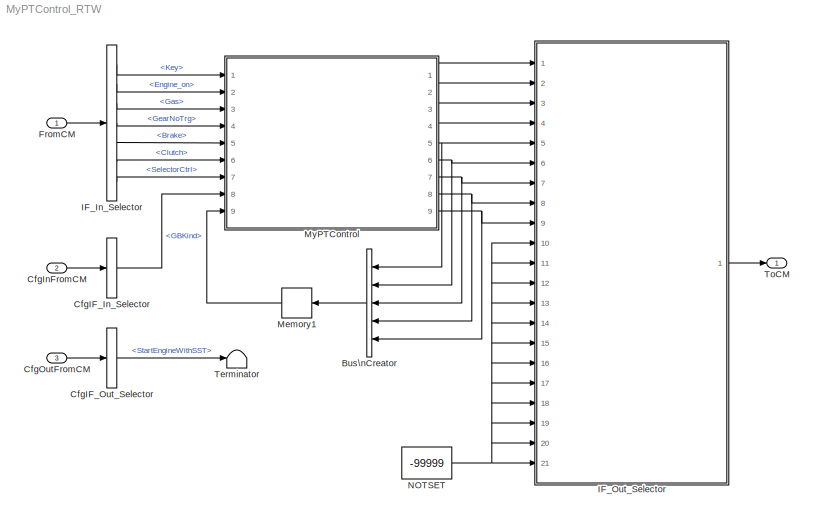
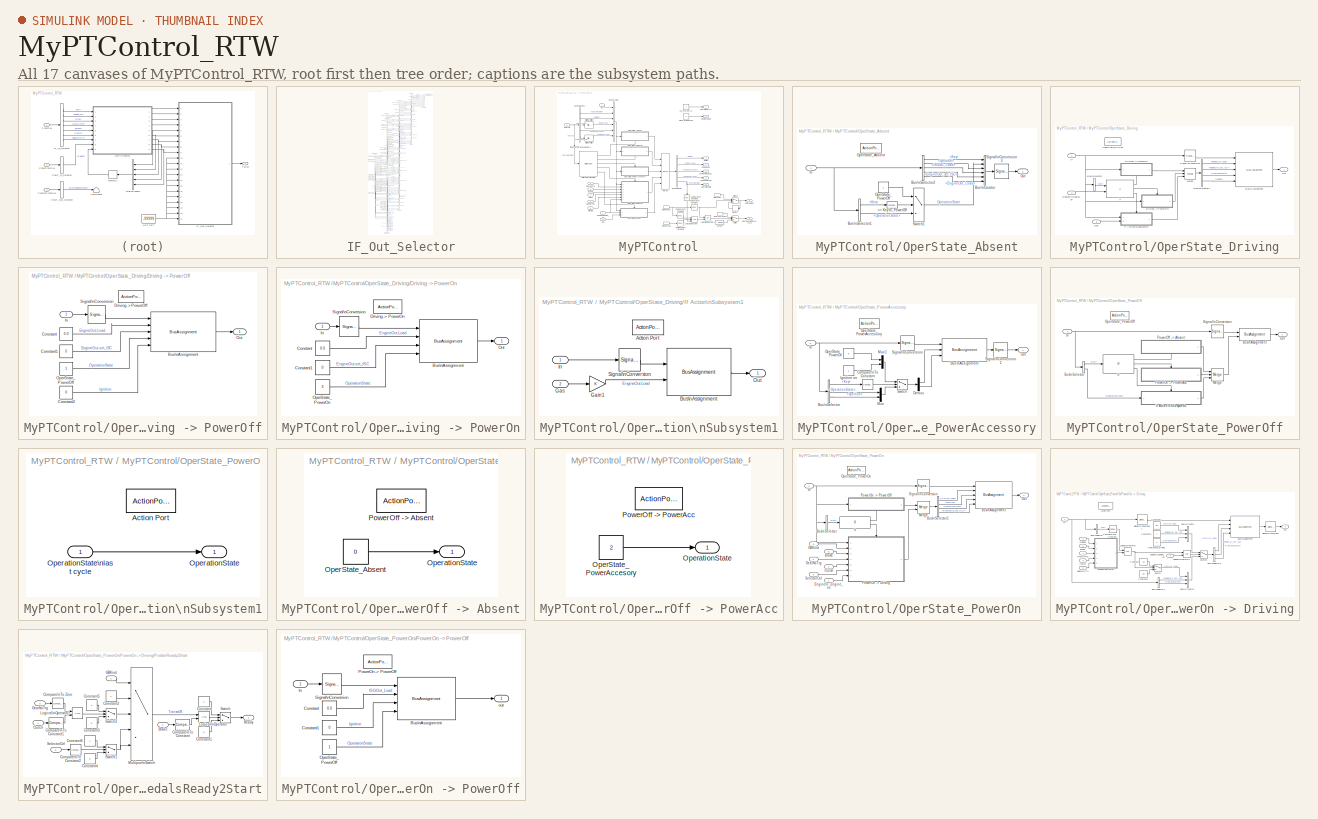
[diagram: thumbnail index - all 17 canvases of the model, root first then tree order]
MODEL MyPTControl_RTW
KIND model
CONFIG InitFcn = vehicle = 'Car'; if ~length(which('cmcmd')), cmenv; end\nMyPTControl_RTW_bus
CONFIG PreLoadFcn = vehicle = 'Car'; if ~length(which('cmcmd')), cmenv; end\nMyPTControl_RTW_bus
BLOCK [BusCreator] Bus\nCreator
  DisplayOption = bar
  InheritFromInputs = on
  Inputs = 5
  Ports = [5, 1]
  SID = 162
BLOCK [BusSelector] CfgIF_In_Selector
  OutputSignals = GearBox.GBKind
  Ports = [1, 1]
  SID = 163
BLOCK [BusSelector] CfgIF_Out_Selector
  OutputSignals = StartEngineWithSST
  Ports = [1, 1]
  SID = 164
BLOCK [Inport] CfgInFromCM
  IconDisplay = Port number
  OutDataTypeStr = Bus: cmPTControlCfgIn
  Port = 2
  SID = 8
BLOCK [Inport] CfgOutFromCM
  IconDisplay = Port number
  OutDataTypeStr = Bus: cmPTControlCfgOut
  Port = 3
  SID = 11
BLOCK [Inport] FromCM
  IconDisplay = Port number
  OutDataTypeStr = Bus: cmPTControlIn
  SID = 1
BLOCK [BusSelector] IF_In_Selector
  OutputSignals = Key,EngineIn.Engine_on,Gas,GearNoTrg,Brake,Clutch,SelectorCtrl
  Ports = [1, 7]
  SID = 165
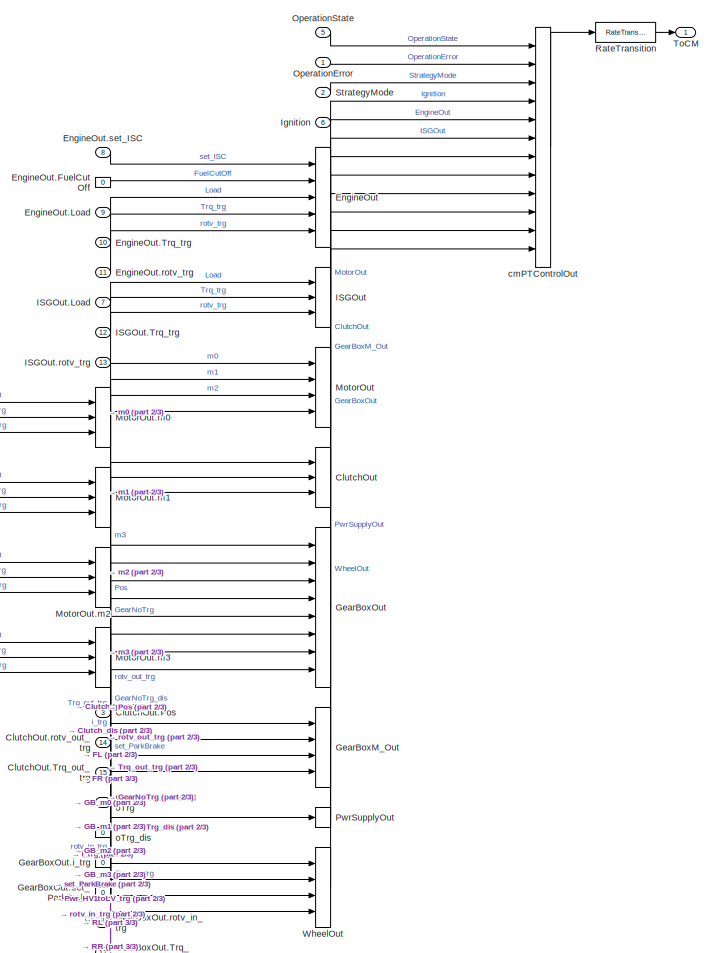
[diagram: IF_Out_Selector - part 1/3, top right region]
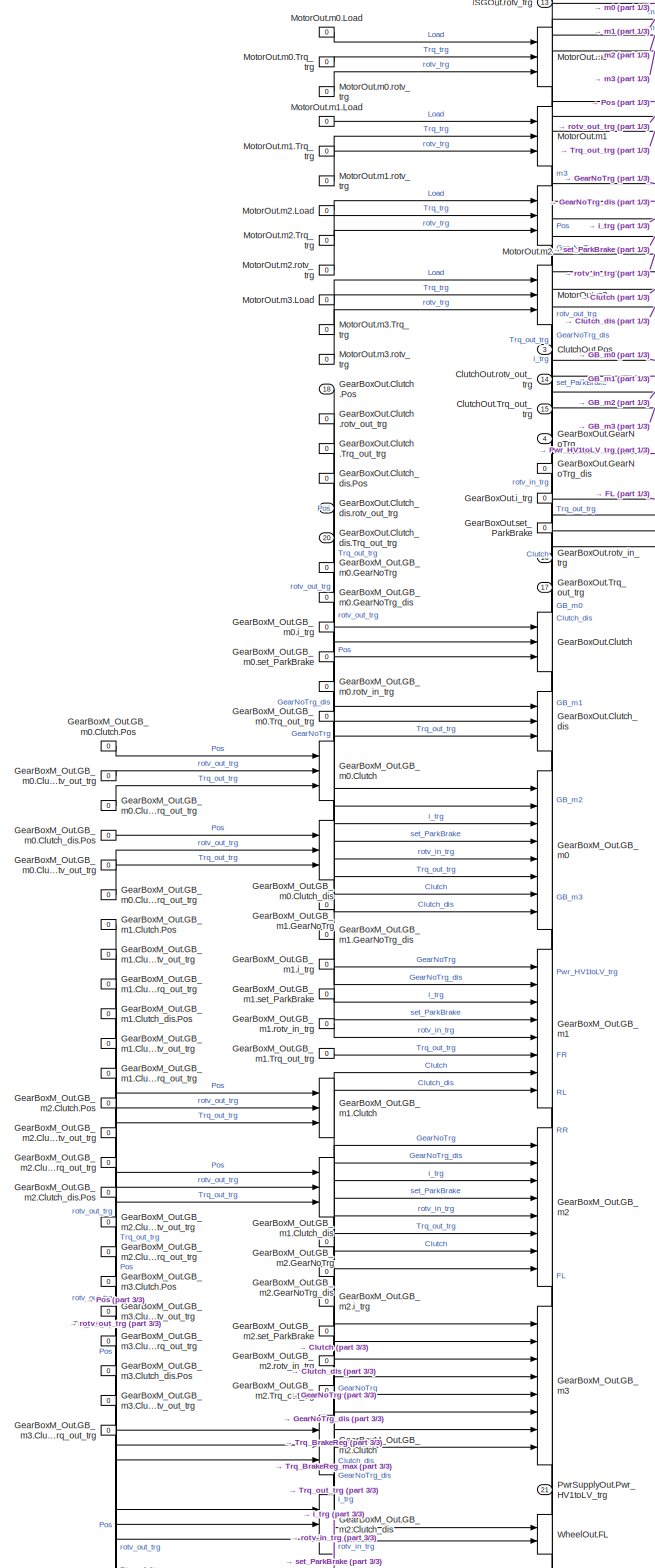
[diagram: IF_Out_Selector - part 2/3, middle left region]
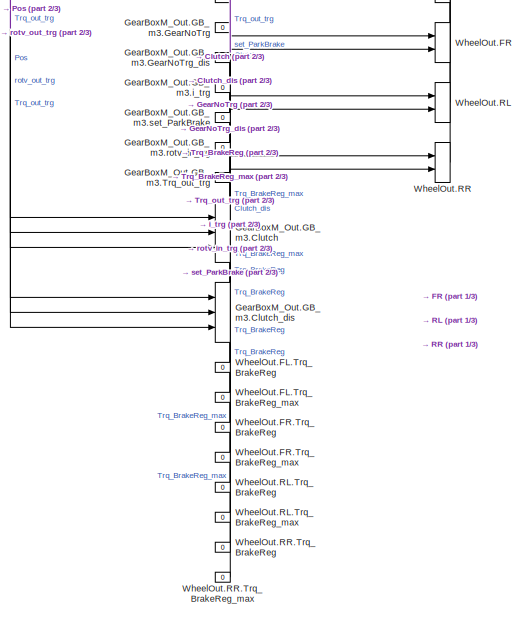
[diagram: IF_Out_Selector - part 3/3, bottom left region]
BLOCK [SubSystem] IF_Out_Selector
  OpenFcn = cmSignalSelect('SignalSelection_CB',gcb)
  Ports = [21, 1]
  RequestExecContextInheritance = off
  SID = 5
  UserData = DataTag0
  UserDataPersistent = on
  Variant = off
BLOCK [BusCreator] IF_Out_Selector/ClutchOut
  InheritFromInputs = on
  Inputs = 3
  Ports = [3, 1]
  SID = 46
BLOCK [Inport] IF_Out_Selector/ClutchOut.Pos
  IconDisplay = Port number
  Port = 3
  SID = 143
BLOCK [Inport] IF_Out_Selector/ClutchOut.Trq_out_trg
  IconDisplay = Port number
  Port = 15
  SID = 155
BLOCK [Inport] IF_Out_Selector/ClutchOut.rotv_out_trg
  IconDisplay = Port number
  Port = 14
  SID = 154
BLOCK [BusCreator] IF_Out_Selector/EngineOut
  InheritFromInputs = on
  Inputs = 5
  Ports = [5, 1]
  SID = 19
BLOCK [Constant] IF_Out_Selector/EngineOut.FuelCutOff
  SID = 21
  Value = 0
BLOCK [Inport] IF_Out_Selector/EngineOut.Load
  IconDisplay = Port number
  Port = 9
  SID = 149
BLOCK [Inport] IF_Out_Selector/EngineOut.Trq_trg
  IconDisplay = Port number
  Port = 10
  SID = 150
BLOCK [Inport] IF_Out_Selector/EngineOut.rotv_trg
  IconDisplay = Port number
  Port = 11
  SID = 151
BLOCK [Inport] IF_Out_Selector/EngineOut.set_ISC
  IconDisplay = Port number
  Port = 8
  SID = 148
BLOCK [BusCreator] IF_Out_Selector/GearBoxM_Out
  InheritFromInputs = on
  Inputs = 4
  Ports = [4, 1]
  SID = 65
BLOCK [BusCreator] IF_Out_Selector/GearBoxM_Out.GB_m0
  InheritFromInputs = on
  Inputs = 8
  Ports = [8, 1]
  SID = 66
BLOCK [BusCreator] IF_Out_Selector/GearBoxM_Out.GB_m0.Clutch
  InheritFromInputs = on
  Inputs = 3
  Ports = [3, 1]
  SID = 73
BLOCK [Constant] IF_Out_Selector/GearBoxM_Out.GB_m0.Clutch.Pos
  SID = 74
  Value = 0
BLOCK [Constant] IF_Out_Selector/GearBoxM_Out.GB_m0.Clutch.Trq_out_trg
  SID = 76
  Value = 0
BLOCK [Constant] IF_Out_Selector/GearBoxM_Out.GB_m0.Clutch.rotv_out_trg
  SID = 75
  Value = 0
BLOCK [BusCreator] IF_Out_Selector/GearBoxM_Out.GB_m0.Clutch_dis
  InheritFromInputs = on
  Inputs = 3
  Ports = [3, 1]
  SID = 77
BLOCK [Constant] IF_Out_Selector/GearBoxM_Out.GB_m0.Clutch_dis.Pos
  SID = 78
  Value = 0
BLOCK [Constant] IF_Out_Selector/GearBoxM_Out.GB_m0.Clutch_dis.Trq_out_trg
  SID = 80
  Value = 0
BLOCK [Constant] IF_Out_Selector/GearBoxM_Out.GB_m0.Clutch_dis.rotv_out_trg
  SID = 79
  Value = 0
BLOCK [Constant] IF_Out_Selector/GearBoxM_Out.GB_m0.GearNoTrg
  SID = 67
  Value = 0
BLOCK [Constant] IF_Out_Selector/GearBoxM_Out.GB_m0.GearNoTrg_dis
  SID = 68
  Value = 0
BLOCK [Constant] IF_Out_Selector/GearBoxM_Out.GB_m0.Trq_out_trg
  SID = 72
  Value = 0
BLOCK [Constant] IF_Out_Selector/GearBoxM_Out.GB_m0.i_trg
  SID = 69
  Value = 0
BLOCK [Constant] IF_Out_Selector/GearBoxM_Out.GB_m0.rotv_in_trg
  SID = 71
  Value = 0
BLOCK [Constant] IF_Out_Selector/GearBoxM_Out.GB_m0.set_ParkBrake
  SID = 70
  Value = 0
BLOCK [BusCreator] IF_Out_Selector/GearBoxM_Out.GB_m1
  InheritFromInputs = on
  Inputs = 8
  Ports = [8, 1]
  SID = 81
BLOCK [BusCreator] IF_Out_Selector/GearBoxM_Out.GB_m1.Clutch
  InheritFromInputs = on
  Inputs = 3
  Ports = [3, 1]
  SID = 88
BLOCK [Constant] IF_Out_Selector/GearBoxM_Out.GB_m1.Clutch.Pos
  SID = 89
  Value = 0
BLOCK [Constant] IF_Out_Selector/GearBoxM_Out.GB_m1.Clutch.Trq_out_trg
  SID = 91
  Value = 0
BLOCK [Constant] IF_Out_Selector/GearBoxM_Out.GB_m1.Clutch.rotv_out_trg
  SID = 90
  Value = 0
BLOCK [BusCreator] IF_Out_Selector/GearBoxM_Out.GB_m1.Clutch_dis
  InheritFromInputs = on
  Inputs = 3
  Ports = [3, 1]
  SID = 92
BLOCK [Constant] IF_Out_Selector/GearBoxM_Out.GB_m1.Clutch_dis.Pos
  SID = 93
  Value = 0
BLOCK [Constant] IF_Out_Selector/GearBoxM_Out.GB_m1.Clutch_dis.Trq_out_trg
  SID = 95
  Value = 0
BLOCK [Constant] IF_Out_Selector/GearBoxM_Out.GB_m1.Clutch_dis.rotv_out_trg
  SID = 94
  Value = 0
BLOCK [Constant] IF_Out_Selector/GearBoxM_Out.GB_m1.GearNoTrg
  SID = 82
  Value = 0
BLOCK [Constant] IF_Out_Selector/GearBoxM_Out.GB_m1.GearNoTrg_dis
  SID = 83
  Value = 0
BLOCK [Constant] IF_Out_Selector/GearBoxM_Out.GB_m1.Trq_out_trg
  SID = 87
  Value = 0
BLOCK [Constant] IF_Out_Selector/GearBoxM_Out.GB_m1.i_trg
  SID = 84
  Value = 0
BLOCK [Constant] IF_Out_Selector/GearBoxM_Out.GB_m1.rotv_in_trg
  SID = 86
  Value = 0
BLOCK [Constant] IF_Out_Selector/GearBoxM_Out.GB_m1.set_ParkBrake
  SID = 85
  Value = 0
BLOCK [BusCreator] IF_Out_Selector/GearBoxM_Out.GB_m2
  InheritFromInputs = on
  Inputs = 8
  Ports = [8, 1]
  SID = 96
BLOCK [BusCreator] IF_Out_Selector/GearBoxM_Out.GB_m2.Clutch
  InheritFromInputs = on
  Inputs = 3
  Ports = [3, 1]
  SID = 103
BLOCK [Constant] IF_Out_Selector/GearBoxM_Out.GB_m2.Clutch.Pos
  SID = 104
  Value = 0
BLOCK [Constant] IF_Out_Selector/GearBoxM_Out.GB_m2.Clutch.Trq_out_trg
  SID = 106
  Value = 0
BLOCK [Constant] IF_Out_Selector/GearBoxM_Out.GB_m2.Clutch.rotv_out_trg
  SID = 105
  Value = 0
BLOCK [BusCreator] IF_Out_Selector/GearBoxM_Out.GB_m2.Clutch_dis
  InheritFromInputs = on
  Inputs = 3
  Ports = [3, 1]
  SID = 107
BLOCK [Constant] IF_Out_Selector/GearBoxM_Out.GB_m2.Clutch_dis.Pos
  SID = 108
  Value = 0
BLOCK [Constant] IF_Out_Selector/GearBoxM_Out.GB_m2.Clutch_dis.Trq_out_trg
  SID = 110
  Value = 0
BLOCK [Constant] IF_Out_Selector/GearBoxM_Out.GB_m2.Clutch_dis.rotv_out_trg
  SID = 109
  Value = 0
BLOCK [Constant] IF_Out_Selector/GearBoxM_Out.GB_m2.GearNoTrg
  SID = 97
  Value = 0
BLOCK [Constant] IF_Out_Selector/GearBoxM_Out.GB_m2.GearNoTrg_dis
  SID = 98
  Value = 0
BLOCK [Constant] IF_Out_Selector/GearBoxM_Out.GB_m2.Trq_out_trg
  SID = 102
  Value = 0
BLOCK [Constant] IF_Out_Selector/GearBoxM_Out.GB_m2.i_trg
  SID = 99
  Value = 0
BLOCK [Constant] IF_Out_Selector/GearBoxM_Out.GB_m2.rotv_in_trg
  SID = 101
  Value = 0
BLOCK [Constant] IF_Out_Selector/GearBoxM_Out.GB_m2.set_ParkBrake
  SID = 100
  Value = 0
BLOCK [BusCreator] IF_Out_Selector/GearBoxM_Out.GB_m3
  InheritFromInputs = on
  Inputs = 8
  Ports = [8, 1]
  SID = 111
BLOCK [BusCreator] IF_Out_Selector/GearBoxM_Out.GB_m3.Clutch
  InheritFromInputs = on
  Inputs = 3
  Ports = [3, 1]
  SID = 118
BLOCK [Constant] IF_Out_Selector/GearBoxM_Out.GB_m3.Clutch.Pos
  SID = 119
  Value = 0
BLOCK [Constant] IF_Out_Selector/GearBoxM_Out.GB_m3.Clutch.Trq_out_trg
  SID = 121
  Value = 0
BLOCK [Constant] IF_Out_Selector/GearBoxM_Out.GB_m3.Clutch.rotv_out_trg
  SID = 120
  Value = 0
BLOCK [BusCreator] IF_Out_Selector/GearBoxM_Out.GB_m3.Clutch_dis
  InheritFromInputs = on
  Inputs = 3
  Ports = [3, 1]
  SID = 122
BLOCK [Constant] IF_Out_Selector/GearBoxM_Out.GB_m3.Clutch_dis.Pos
  SID = 123
  Value = 0
BLOCK [Constant] IF_Out_Selector/GearBoxM_Out.GB_m3.Clutch_dis.Trq_out_trg
  SID = 125
  Value = 0
BLOCK [Constant] IF_Out_Selector/GearBoxM_Out.GB_m3.Clutch_dis.rotv_out_trg
  SID = 124
  Value = 0
BLOCK [Constant] IF_Out_Selector/GearBoxM_Out.GB_m3.GearNoTrg
  SID = 112
  Value = 0
BLOCK [Constant] IF_Out_Selector/GearBoxM_Out.GB_m3.GearNoTrg_dis
  SID = 113
  Value = 0
BLOCK [Constant] IF_Out_Selector/GearBoxM_Out.GB_m3.Trq_out_trg
  SID = 117
  Value = 0
BLOCK [Constant] IF_Out_Selector/GearBoxM_Out.GB_m3.i_trg
  SID = 114
  Value = 0
BLOCK [Constant] IF_Out_Selector/GearBoxM_Out.GB_m3.rotv_in_trg
  SID = 116
  Value = 0
BLOCK [Constant] IF_Out_Selector/GearBoxM_Out.GB_m3.set_ParkBrake
  SID = 115
  Value = 0
BLOCK [BusCreator] IF_Out_Selector/GearBoxOut
  InheritFromInputs = on
  Inputs = 8
  Ports = [8, 1]
  SID = 50
BLOCK [BusCreator] IF_Out_Selector/GearBoxOut.Clutch
  InheritFromInputs = on
  Inputs = 3
  Ports = [3, 1]
  SID = 57
BLOCK [Inport] IF_Out_Selector/GearBoxOut.Clutch.Pos
  IconDisplay = Port number
  Port = 18
  SID = 158
BLOCK [Constant] IF_Out_Selector/GearBoxOut.Clutch.Trq_out_trg
  SID = 60
  Value = 0
BLOCK [Constant] IF_Out_Selector/GearBoxOut.Clutch.rotv_out_trg
  SID = 59
  Value = 0
BLOCK [BusCreator] IF_Out_Selector/GearBoxOut.Clutch_dis
  InheritFromInputs = on
  Inputs = 3
  Ports = [3, 1]
  SID = 61
BLOCK [Constant] IF_Out_Selector/GearBoxOut.Clutch_dis.Pos
  SID = 62
  Value = 0
BLOCK [Inport] IF_Out_Selector/GearBoxOut.Clutch_dis.Trq_out_trg
  IconDisplay = Port number
  Port = 20
  SID = 160
BLOCK [Inport] IF_Out_Selector/GearBoxOut.Clutch_dis.rotv_out_trg
  IconDisplay = Port number
  Port = 19
  SID = 159
BLOCK [Inport] IF_Out_Selector/GearBoxOut.GearNoTrg
  IconDisplay = Port number
  Port = 4
  SID = 144
BLOCK [Constant] IF_Out_Selector/GearBoxOut.GearNoTrg_dis
  SID = 52
  Value = 0
BLOCK [Inport] IF_Out_Selector/GearBoxOut.Trq_out_trg
  IconDisplay = Port number
  Port = 17
  SID = 157
BLOCK [Constant] IF_Out_Selector/GearBoxOut.i_trg
  SID = 53
  Value = 0
BLOCK [Inport] IF_Out_Selector/GearBoxOut.rotv_in_trg
  IconDisplay = Port number
  Port = 16
  SID = 156
BLOCK [Constant] IF_Out_Selector/GearBoxOut.set_ParkBrake
  SID = 54
  Value = 0
BLOCK [BusCreator] IF_Out_Selector/ISGOut
  InheritFromInputs = on
  Inputs = 3
  Ports = [3, 1]
  SID = 25
BLOCK [Inport] IF_Out_Selector/ISGOut.Load
  IconDisplay = Port number
  Port = 7
  SID = 147
BLOCK [Inport] IF_Out_Selector/ISGOut.Trq_trg
  IconDisplay = Port number
  Port = 12
  SID = 152
BLOCK [Inport] IF_Out_Selector/ISGOut.rotv_trg
  IconDisplay = Port number
  Port = 13
  SID = 153
BLOCK [Inport] IF_Out_Selector/Ignition
  IconDisplay = Port number
  Port = 6
  SID = 146
BLOCK [BusCreator] IF_Out_Selector/MotorOut
  InheritFromInputs = on
  Inputs = 4
  Ports = [4, 1]
  SID = 29
BLOCK [BusCreator] IF_Out_Selector/MotorOut.m0
  InheritFromInputs = on
  Inputs = 3
  Ports = [3, 1]
  SID = 30
BLOCK [Constant] IF_Out_Selector/MotorOut.m0.Load
  SID = 31
  Value = 0
BLOCK [Constant] IF_Out_Selector/MotorOut.m0.Trq_trg
  SID = 32
  Value = 0
BLOCK [Constant] IF_Out_Selector/MotorOut.m0.rotv_trg
  SID = 33
  Value = 0
BLOCK [BusCreator] IF_Out_Selector/MotorOut.m1
  InheritFromInputs = on
  Inputs = 3
  Ports = [3, 1]
  SID = 34
BLOCK [Constant] IF_Out_Selector/MotorOut.m1.Load
  SID = 35
  Value = 0
BLOCK [Constant] IF_Out_Selector/MotorOut.m1.Trq_trg
  SID = 36
  Value = 0
BLOCK [Constant] IF_Out_Selector/MotorOut.m1.rotv_trg
  SID = 37
  Value = 0
BLOCK [BusCreator] IF_Out_Selector/MotorOut.m2
  InheritFromInputs = on
  Inputs = 3
  Ports = [3, 1]
  SID = 38
BLOCK [Constant] IF_Out_Selector/MotorOut.m2.Load
  SID = 39
  Value = 0
BLOCK [Constant] IF_Out_Selector/MotorOut.m2.Trq_trg
  SID = 40
  Value = 0
BLOCK [Constant] IF_Out_Selector/MotorOut.m2.rotv_trg
  SID = 41
  Value = 0
BLOCK [BusCreator] IF_Out_Selector/MotorOut.m3
  InheritFromInputs = on
  Inputs = 3
  Ports = [3, 1]
  SID = 42
BLOCK [Constant] IF_Out_Selector/MotorOut.m3.Load
  SID = 43
  Value = 0
BLOCK [Constant] IF_Out_Selector/MotorOut.m3.Trq_trg
  SID = 44
  Value = 0
BLOCK [Constant] IF_Out_Selector/MotorOut.m3.rotv_trg
  SID = 45
  Value = 0
BLOCK [Inport] IF_Out_Selector/OperationError
  IconDisplay = Port number
  SID = 141
BLOCK [Inport] IF_Out_Selector/OperationState
  IconDisplay = Port number
  Port = 5
  SID = 145
BLOCK [BusCreator] IF_Out_Selector/PwrSupplyOut
  InheritFromInputs = on
  Inputs = 1
  Ports = [1, 1]
  SID = 126
BLOCK [Inport] IF_Out_Selector/PwrSupplyOut.Pwr_HV1toLV_trg
  IconDisplay = Port number
  Port = 21
  SID = 161
BLOCK [RateTransition] IF_Out_Selector/RateTransition
  OutPortSampleTime = str2num(get_param(bdroot,'FixedStep'))
  SID = 6
BLOCK [Inport] IF_Out_Selector/StrategyMode
  IconDisplay = Port number
  Port = 2
  SID = 142
BLOCK [Outport] IF_Out_Selector/ToCM
  IconDisplay = Port number
  SID = 7
BLOCK [BusCreator] IF_Out_Selector/WheelOut
  InheritFromInputs = on
  Inputs = 4
  Ports = [4, 1]
  SID = 128
BLOCK [BusCreator] IF_Out_Selector/WheelOut.FL
  InheritFromInputs = on
  Inputs = 2
  Ports = [2, 1]
  SID = 129
BLOCK [Constant] IF_Out_Selector/WheelOut.FL.Trq_BrakeReg
  SID = 130
  Value = 0
BLOCK [Constant] IF_Out_Selector/WheelOut.FL.Trq_BrakeReg_max
  SID = 131
  Value = 0
BLOCK [BusCreator] IF_Out_Selector/WheelOut.FR
  InheritFromInputs = on
  Inputs = 2
  Ports = [2, 1]
  SID = 132
BLOCK [Constant] IF_Out_Selector/WheelOut.FR.Trq_BrakeReg
  SID = 133
  Value = 0
BLOCK [Constant] IF_Out_Selector/WheelOut.FR.Trq_BrakeReg_max
  SID = 134
  Value = 0
BLOCK [BusCreator] IF_Out_Selector/WheelOut.RL
  InheritFromInputs = on
  Inputs = 2
  Ports = [2, 1]
  SID = 135
BLOCK [Constant] IF_Out_Selector/WheelOut.RL.Trq_BrakeReg
  SID = 136
  Value = 0
BLOCK [Constant] IF_Out_Selector/WheelOut.RL.Trq_BrakeReg_max
  SID = 137
  Value = 0
BLOCK [BusCreator] IF_Out_Selector/WheelOut.RR
  InheritFromInputs = on
  Inputs = 2
  Ports = [2, 1]
  SID = 138
BLOCK [Constant] IF_Out_Selector/WheelOut.RR.Trq_BrakeReg
  SID = 139
  Value = 0
BLOCK [Constant] IF_Out_Selector/WheelOut.RR.Trq_BrakeReg_max
  SID = 140
  Value = 0
BLOCK [BusCreator] IF_Out_Selector/cmPTControlOut
  InheritFromInputs = on
  Inputs = 12
  Ports = [12, 1]
  SID = 14
BLOCK [Memory] Memory1
  SID = 166
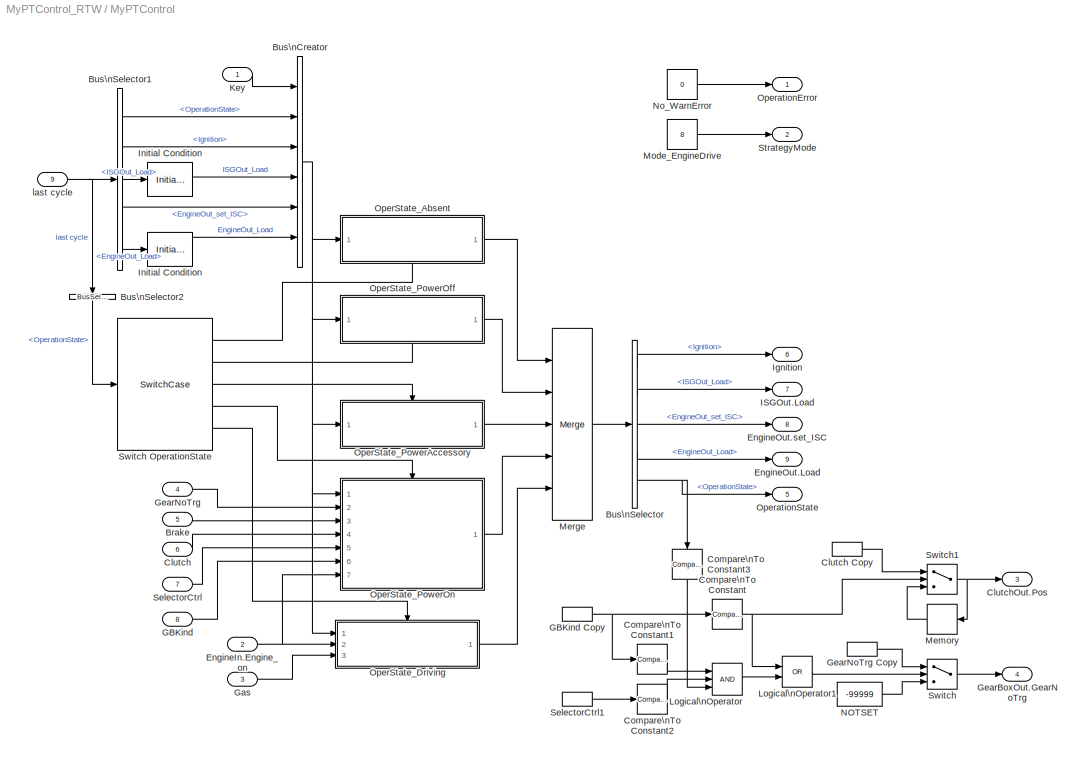
BLOCK [SubSystem] MyPTControl
  Ports = [9, 9]
  RequestExecContextInheritance = off
  SID = 167
  Variant = off
BLOCK [Inport] MyPTControl/Brake
  IconDisplay = Port number
  Port = 5
  SID = 172
BLOCK [BusCreator] MyPTControl/Bus\nCreator
  DisplayOption = bar
  InheritFromInputs = on
  Inputs = 6
  Ports = [6, 1]
  SID = 177
BLOCK [BusSelector] MyPTControl/Bus\nSelector
  OutputSignals = Ignition,ISGOut_Load,EngineOut_set_ISC,EngineOut_Load,OperationState
  Ports = [1, 5]
  SID = 178
BLOCK [BusSelector] MyPTControl/Bus\nSelector1
  OutputSignals = OperationState,Ignition,ISGOut_Load,EngineOut_set_ISC,EngineOut_Load
  Ports = [1, 5]
  SID = 179
BLOCK [BusSelector] MyPTControl/Bus\nSelector2
  OutputSignals = OperationState
  Ports = [1, 1]
  SID = 180
BLOCK [Inport] MyPTControl/Clutch
  IconDisplay = Port number
  Port = 6
  SID = 173
BLOCK [InportShadow] MyPTControl/Clutch Copy
  IconDisplay = Port number
  Port = 6
  SID = 181
BLOCK [Outport] MyPTControl/ClutchOut.Pos
  IconDisplay = Port number
  Port = 3
  SID = 366
BLOCK [Reference] MyPTControl/Compare\nTo Constant  REF=simulink/Logic and Bit\nOperations/Compare\nTo Constant
  OutDataTypeStr = uint8
  Ports = [1, 1]
  SID = 182
  SourceBlock = simulink/Logic and Bit\nOperations/Compare\nTo Constant
  SourceType = Compare To Constant
  ZeroCross = off
  const = 1
  relop = ==
BLOCK [Reference] MyPTControl/Compare\nTo Constant1  REF=simulink/Logic and Bit\nOperations/Compare\nTo Constant
  OutDataTypeStr = uint8
  Ports = [1, 1]
  SID = 183
  SourceBlock = simulink/Logic and Bit\nOperations/Compare\nTo Constant
  SourceType = Compare To Constant
  ZeroCross = off
  const = 2
  relop = ==
BLOCK [Reference] MyPTControl/Compare\nTo Constant2  REF=simulink/Logic and Bit\nOperations/Compare\nTo Constant
  OutDataTypeStr = uint8
  Ports = [1, 1]
  SID = 184
  SourceBlock = simulink/Logic and Bit\nOperations/Compare\nTo Constant
  SourceType = Compare To Constant
  ZeroCross = off
  const = 2
  relop = ==
BLOCK [Reference] MyPTControl/Compare\nTo Constant3  REF=simulink/Logic and Bit\nOperations/Compare\nTo Constant
  OutDataTypeStr = uint8
  Ports = [1, 1]
  SID = 185
  SourceBlock = simulink/Logic and Bit\nOperations/Compare\nTo Constant
  SourceType = Compare To Constant
  ZeroCross = off
  const = 4
  relop = ==
BLOCK [Inport] MyPTControl/EngineIn.Engine_on
  IconDisplay = Port number
  Port = 2
  SID = 169
BLOCK [Outport] MyPTControl/EngineOut.Load
  IconDisplay = Port number
  Port = 9
  SID = 372
BLOCK [Outport] MyPTControl/EngineOut.set_ISC
  IconDisplay = Port number
  Port = 8
  SID = 371
BLOCK [Inport] MyPTControl/GBKind
  IconDisplay = Port number
  Port = 8
  SID = 175
BLOCK [InportShadow] MyPTControl/GBKind Copy
  IconDisplay = Port number
  Port = 8
  SID = 186
BLOCK [Inport] MyPTControl/Gas
  IconDisplay = Port number
  Port = 3
  SID = 170
BLOCK [Outport] MyPTControl/GearBoxOut.GearNoTrg
  IconDisplay = Port number
  Port = 4
  SID = 367
BLOCK [Inport] MyPTControl/GearNoTrg
  IconDisplay = Port number
  Port = 4
  SID = 171
BLOCK [InportShadow] MyPTControl/GearNoTrg Copy
  IconDisplay = Port number
  Port = 4
  SID = 187
BLOCK [Outport] MyPTControl/ISGOut.Load
  IconDisplay = Port number
  Port = 7
  SID = 370
BLOCK [Outport] MyPTControl/Ignition
  IconDisplay = Port number
  Port = 6
  SID = 369
BLOCK [InitialCondition] MyPTControl/Initial Condition
  SID = 188
  Value = 0
BLOCK [InitialCondition] MyPTControl/Initial Condition 
  SID = 189
  Value = 0
BLOCK [Inport] MyPTControl/Key
  IconDisplay = Port number
  SID = 168
BLOCK [Logic] MyPTControl/Logical\nOperator
  AllPortsSameDT = off
  Inputs = 3
  OutDataTypeStr = boolean
  Ports = [3, 1]
  SID = 190
BLOCK [Logic] MyPTControl/Logical\nOperator1
  AllPortsSameDT = off
  Operator = OR
  OutDataTypeStr = boolean
  Ports = [2, 1]
  SID = 191
BLOCK [Memory] MyPTControl/Memory
  SID = 192
BLOCK [Merge] MyPTControl/Merge
  Inputs = 5
  Ports = [5, 1]
  SID = 193
BLOCK [Constant] MyPTControl/Mode_EngineDrive
  SID = 194
  Value = 8
BLOCK [Constant] MyPTControl/NOTSET
  SID = 195
  Value = -99999
BLOCK [Constant] MyPTControl/No_WarnError
  SID = 196
  Value = 0
BLOCK [SubSystem] MyPTControl/OperState_Absent
  Ports = [1, 1, 0, 0, 0, 0, 0, 1]
  RequestExecContextInheritance = off
  SID = 197
  TreatAsAtomicUnit = on
  Variant = off
BLOCK [Reference] MyPTControl/OperState_Absent/>= KeyIn_PowerOff  REF=simulink/Logic and Bit\nOperations/Compare\nTo Constant
  OutDataTypeStr = uint8
  Ports = [1, 1]
  SID = 200
  SourceBlock = simulink/Logic and Bit\nOperations/Compare\nTo Constant
  SourceType = Compare To Constant
  ZeroCross = off
  const = 1
  relop = >=
BLOCK [BusCreator] MyPTControl/OperState_Absent/Bus\nCreator
  DisplayOption = bar
  InheritFromInputs = on
  Inputs = 6
  Ports = [6, 1]
  SID = 201
BLOCK [BusSelector] MyPTControl/OperState_Absent/Bus\nSelector1
  OutputSignals = Key,OperationState
  Ports = [1, 2]
  SID = 202
BLOCK [BusSelector] MyPTControl/OperState_Absent/Bus\nSelector2
  OutputSignals = Key,Ignition,ISGOut_Load,EngineOut_set_ISC,EngineOut_Load
  Ports = [1, 5]
  SID = 203
BLOCK [Inport] MyPTControl/OperState_Absent/In
  IconDisplay = Port number
  SID = 198
BLOCK [ActionPort] MyPTControl/OperState_Absent/OperState_Absent
  ActionType = case
  SID = 199
BLOCK [Constant] MyPTControl/OperState_Absent/OperState_PowerOff
  SID = 204
BLOCK [Outport] MyPTControl/OperState_Absent/Out
  IconDisplay = Port number
  SID = 207
BLOCK [SignalConversion] MyPTControl/OperState_Absent/Signal\nConversion3
  ConversionOutput = Bus copy
  OverrideOpt = off
  SID = 205
BLOCK [Switch] MyPTControl/OperState_Absent/Switch1
  Criteria = u2 ~= 0
  InputSameDT = off
  SID = 206
  SaturateOnIntegerOverflow = off
  Threshold = 1
BLOCK [SubSystem] MyPTControl/OperState_Driving
  Ports = [3, 1, 0, 0, 0, 0, 0, 1]
  RequestExecContextInheritance = off
  SID = 208
  TreatAsAtomicUnit = on
  Variant = off
BLOCK [BusAssignment] MyPTControl/OperState_Driving/Bus\nAssignment
  AssignedSignals = EngineOut_Load,EngineOut_set_ISC,OperationState,Ignition
  Ports = [5, 1]
  SID = 213
BLOCK [BusSelector] MyPTControl/OperState_Driving/Bus\nSelector
  OutputSignals = Key
  Ports = [1, 1]
  SID = 214
BLOCK [BusSelector] MyPTControl/OperState_Driving/Bus\nSelector1
  OutputSignals = EngineOut_Load,EngineOut_set_ISC,OperationState,Ignition
  Ports = [1, 4]
  SID = 215
BLOCK [SubSystem] MyPTControl/OperState_Driving/Driving -> PowerOff
  Ports = [1, 1, 0, 0, 0, 0, 0, 1]
  RequestExecContextInheritance = off
  SID = 216
  TreatAsAtomicUnit = on
  Variant = off
BLOCK [BusAssignment] MyPTControl/OperState_Driving/Driving -> PowerOff/Bus\nAssignment
  AssignedSignals = EngineOut_Load,EngineOut_set_ISC,Ignition,OperationState
  Ports = [5, 1]
  SID = 219
BLOCK [Constant] MyPTControl/OperState_Driving/Driving -> PowerOff/Constant
  SID = 220
  Value = 0.0
BLOCK [Constant] MyPTControl/OperState_Driving/Driving -> PowerOff/Constant1
  SID = 221
  Value = 0
BLOCK [Constant] MyPTControl/OperState_Driving/Driving -> PowerOff/Constant2
  SID = 222
  Value = 0
BLOCK [ActionPort] MyPTControl/OperState_Driving/Driving -> PowerOff/Driving -> PowerOff
  ActionType = elseif
  SID = 218
BLOCK [Inport] MyPTControl/OperState_Driving/Driving -> PowerOff/In
  IconDisplay = Port number
  SID = 217
BLOCK [Constant] MyPTControl/OperState_Driving/Driving -> PowerOff/OperState_PowerOff
  SID = 223
BLOCK [Outport] MyPTControl/OperState_Driving/Driving -> PowerOff/Out
  IconDisplay = Port number
  InitialOutput = [0, 0, 0, 0, 0, 0]
  SID = 225
BLOCK [SignalConversion] MyPTControl/OperState_Driving/Driving -> PowerOff/Signal\nConversion
  ConversionOutput = Bus copy
  OverrideOpt = off
  SID = 224
BLOCK [SubSystem] MyPTControl/OperState_Driving/Driving -> PowerOn
  Ports = [1, 1, 0, 0, 0, 0, 0, 1]
  RequestExecContextInheritance = off
  SID = 226
  TreatAsAtomicUnit = on
  Variant = off
BLOCK [BusAssignment] MyPTControl/OperState_Driving/Driving -> PowerOn/Bus\nAssignment
  AssignedSignals = EngineOut_Load,EngineOut_set_ISC,OperationState
  Ports = [4, 1]
  SID = 229
BLOCK [Constant] MyPTControl/OperState_Driving/Driving -> PowerOn/Constant
  SID = 230
  Value = 0.0
BLOCK [Constant] MyPTControl/OperState_Driving/Driving -> PowerOn/Constant1
  SID = 231
  Value = 0
BLOCK [ActionPort] MyPTControl/OperState_Driving/Driving -> PowerOn/Driving -> PowerOn
  ActionType = then
  SID = 228
BLOCK [Inport] MyPTControl/OperState_Driving/Driving -> PowerOn/In
  IconDisplay = Port number
  SID = 227
BLOCK [Constant] MyPTControl/OperState_Driving/Driving -> PowerOn/OperState_PowerOn
  SID = 232
  Value = 3
BLOCK [Outport] MyPTControl/OperState_Driving/Driving -> PowerOn/Out
  IconDisplay = Port number
  InitialOutput = [0, 0, 0, 0, 0, 0]
  SID = 234
BLOCK [SignalConversion] MyPTControl/OperState_Driving/Driving -> PowerOn/Signal\nConversion
  ConversionOutput = Bus copy
  OverrideOpt = off
  SID = 233
BLOCK [Inport] MyPTControl/OperState_Driving/EngineIn.Engine_on
  IconDisplay = Port number
  Port = 2
  SID = 210
BLOCK [Inport] MyPTControl/OperState_Driving/Gas
  IconDisplay = Port number
  Port = 3
  SID = 211
BLOCK [If] MyPTControl/OperState_Driving/If
  ElseIfExpressions = u1<=1
  IfExpression = ~u2
  NumInputs = 2
  Ports = [2, 3]
  SID = 235
BLOCK [SubSystem] MyPTControl/OperState_Driving/If Action\nSubsystem1
  Ports = [2, 1, 0, 0, 0, 0, 0, 1]
  RequestExecContextInheritance = off
  SID = 236
  TreatAsAtomicUnit = on
  Variant = off
BLOCK [ActionPort] MyPTControl/OperState_Driving/If Action\nSubsystem1/Action Port
  ActionType = else
  SID = 239
BLOCK [BusAssignment] MyPTControl/OperState_Driving/If Action\nSubsystem1/Bus\nAssignment
  AssignedSignals = EngineOut_Load
  Ports = [2, 1]
  SID = 240
BLOCK [Gain] MyPTControl/OperState_Driving/If Action\nSubsystem1/Gain1
  OutDataTypeStr = Inherit: Inherit via internal rule
  ParamDataTypeStr = Inherit: Inherit via internal rule
  SID = 241
  SaturateOnIntegerOverflow = off
BLOCK [Inport] MyPTControl/OperState_Driving/If Action\nSubsystem1/Gas
  IconDisplay = Port number
  Port = 2
  SID = 238
BLOCK [Inport] MyPTControl/OperState_Driving/If Action\nSubsystem1/In
  IconDisplay = Port number
  SID = 237
BLOCK [Outport] MyPTControl/OperState_Driving/If Action\nSubsystem1/Out
  IconDisplay = Port number
  SID = 243
BLOCK [SignalConversion] MyPTControl/OperState_Driving/If Action\nSubsystem1/Signal\nConversion
  ConversionOutput = Bus copy
  OverrideOpt = off
  SID = 242
BLOCK [Inport] MyPTControl/OperState_Driving/In
  IconDisplay = Port number
  SID = 209
BLOCK [Merge] MyPTControl/OperState_Driving/Merge
  Inputs = 3
  Ports = [3, 1]
  SID = 244
BLOCK [ActionPort] MyPTControl/OperState_Driving/OperState_Driving
  ActionType = default
  SID = 212
BLOCK [Outport] MyPTControl/OperState_Driving/Out
  IconDisplay = Port number
  SID = 246
BLOCK [SignalConversion] MyPTControl/OperState_Driving/Signal\nConversion
  ConversionOutput = Bus copy
  OverrideOpt = off
  SID = 245
BLOCK [SubSystem] MyPTControl/OperState_PowerAccessory
  Ports = [1, 1, 0, 0, 0, 0, 0, 1]
  RequestExecContextInheritance = off
  SID = 247
  TreatAsAtomicUnit = on
  Variant = off
BLOCK [BusAssignment] MyPTControl/OperState_PowerAccessory/Bus\nAssignment
  AssignedSignals = OperationState,Ignition
  Ports = [3, 1]
  SID = 250
BLOCK [BusSelector] MyPTControl/OperState_PowerAccessory/Bus\nSelector
  OutputSignals = Key,OperationState,Ignition
  Ports = [1, 3]
  SID = 251
BLOCK [Reference] MyPTControl/OperState_PowerAccessory/Compare\nTo Constant  REF=simulink/Logic and Bit\nOperations/Compare\nTo Constant
  OutDataTypeStr = uint8
  Ports = [1, 1]
  SID = 252
  SourceBlock = simulink/Logic and Bit\nOperations/Compare\nTo Constant
  SourceType = Compare To Constant
  ZeroCross = off
  const = 3.0
  relop = >=
BLOCK [Demux] MyPTControl/OperState_PowerAccessory/Demux
  DisplayOption = bar
  Outputs = 2
  Ports = [1, 2]
  SID = 253
BLOCK [Constant] MyPTControl/OperState_PowerAccessory/Ignition on
  SID = 254
BLOCK [Inport] MyPTControl/OperState_PowerAccessory/In
  IconDisplay = Port number
  SID = 248
BLOCK [Mux] MyPTControl/OperState_PowerAccessory/Mux
  DisplayOption = bar
  Inputs = 2
  Ports = [2, 1]
  SID = 255
BLOCK [Mux] MyPTControl/OperState_PowerAccessory/Mux1
  DisplayOption = bar
  Inputs = 2
  Ports = [2, 1]
  SID = 256
BLOCK [ActionPort] MyPTControl/OperState_PowerAccessory/OperState_PowerAccessory
  ActionType = case
  SID = 249
BLOCK [Constant] MyPTControl/OperState_PowerAccessory/OperState_PowerOn
  SID = 257
  Value = 3
BLOCK [Outport] MyPTControl/OperState_PowerAccessory/Out
  IconDisplay = Port number
  SID = 261
BLOCK [SignalConversion] MyPTControl/OperState_PowerAccessory/Signal\nConversion
  ConversionOutput = Bus copy
  OverrideOpt = off
  SID = 258
BLOCK [SignalConversion] MyPTControl/OperState_PowerAccessory/Signal\nConversion1
  ConversionOutput = Bus copy
  OverrideOpt = off
  SID = 259
BLOCK [Switch] MyPTControl/OperState_PowerAccessory/Switch
  Criteria = u2 ~= 0
  InputSameDT = off
  SID = 260
  SaturateOnIntegerOverflow = off
  Threshold = 3
BLOCK [SubSystem] MyPTControl/OperState_PowerOff
  Ports = [1, 1, 0, 0, 0, 0, 0, 1]
  RequestExecContextInheritance = off
  SID = 262
  TreatAsAtomicUnit = on
  Variant = off
BLOCK [BusAssignment] MyPTControl/OperState_PowerOff/Bus\nAssignment
  AssignedSignals = OperationState
  Ports = [2, 1]
  SID = 265
BLOCK [BusSelector] MyPTControl/OperState_PowerOff/Bus\nSelector
  OutputSignals = Key,OperationState
  Ports = [1, 2]
  SID = 266
BLOCK [If] MyPTControl/OperState_PowerOff/If
  ElseIfExpressions = u1 >= 2
  IfExpression = u1 == 0
  Ports = [1, 3]
  SID = 267
BLOCK [SubSystem] MyPTControl/OperState_PowerOff/If Action\nSubsystem1
  Ports = [1, 1, 0, 0, 0, 0, 0, 1]
  RequestExecContextInheritance = off
  SID = 268
  TreatAsAtomicUnit = on
  Variant = off
BLOCK [ActionPort] MyPTControl/OperState_PowerOff/If Action\nSubsystem1/Action Port
  ActionType = else
  SID = 270
BLOCK [Outport] MyPTControl/OperState_PowerOff/If Action\nSubsystem1/OperationState
  IconDisplay = Port number
  SID = 271
BLOCK [Inport] MyPTControl/OperState_PowerOff/If Action\nSubsystem1/OperationState\nlast cycle
  IconDisplay = Port number
  SID = 269
BLOCK [Inport] MyPTControl/OperState_PowerOff/In
  IconDisplay = Port number
  SID = 263
BLOCK [Merge] MyPTControl/OperState_PowerOff/Merge
  Inputs = 3
  Ports = [3, 1]
  SID = 272
BLOCK [ActionPort] MyPTControl/OperState_PowerOff/OperState_PowerOff
  ActionType = case
  SID = 264
BLOCK [Outport] MyPTControl/OperState_PowerOff/Out
  IconDisplay = Port number
  SID = 282
BLOCK [SubSystem] MyPTControl/OperState_PowerOff/PowerOff -> Absent
  Ports = [0, 1, 0, 0, 0, 0, 0, 1]
  RequestExecContextInheritance = off
  SID = 273
  TreatAsAtomicUnit = on
  Variant = off
BLOCK [Constant] MyPTControl/OperState_PowerOff/PowerOff -> Absent/OperState_Absent
  SID = 275
  Value = 0
BLOCK [Outport] MyPTControl/OperState_PowerOff/PowerOff -> Absent/OperationState
  IconDisplay = Port number
  InitialOutput = 0
  SID = 276
BLOCK [ActionPort] MyPTControl/OperState_PowerOff/PowerOff -> Absent/PowerOff -> Absent
  ActionType = then
  SID = 274
BLOCK [SubSystem] MyPTControl/OperState_PowerOff/PowerOff -> PowerAcc
  Ports = [0, 1, 0, 0, 0, 0, 0, 1]
  RequestExecContextInheritance = off
  SID = 277
  TreatAsAtomicUnit = on
  Variant = off
BLOCK [Constant] MyPTControl/OperState_PowerOff/PowerOff -> PowerAcc/OperState_PowerAccesory
  SID = 279
  Value = 2
BLOCK [Outport] MyPTControl/OperState_PowerOff/PowerOff -> PowerAcc/OperationState
  IconDisplay = Port number
  InitialOutput = 2
  SID = 280
BLOCK [ActionPort] MyPTControl/OperState_PowerOff/PowerOff -> PowerAcc/PowerOff -> PowerAcc
  ActionType = elseif
  SID = 278
BLOCK [SignalConversion] MyPTControl/OperState_PowerOff/Signal\nConversion
  ConversionOutput = Bus copy
  OverrideOpt = off
  SID = 281
BLOCK [SubSystem] MyPTControl/OperState_PowerOn
  Ports = [7, 1, 0, 0, 0, 0, 0, 1]
  RequestExecContextInheritance = off
  SID = 283
  TreatAsAtomicUnit = on
  Variant = off
BLOCK [Inport] MyPTControl/OperState_PowerOn/Brake
  IconDisplay = Port number
  Port = 3
  SID = 286
BLOCK [BusAssignment] MyPTControl/OperState_PowerOn/Bus\nAssignment
  AssignedSignals = ISGOut_Load,Ignition,OperationState,EngineOut_set_ISC
  Ports = [5, 1]
  SID = 292
BLOCK [BusSelector] MyPTControl/OperState_PowerOn/Bus\nSelector
  OutputSignals = Key
  Ports = [1, 1]
  SID = 293
BLOCK [BusSelector] MyPTControl/OperState_PowerOn/Bus\nSelector1
  OutputSignals = ISGOut_Load,Ignition,OperationState,EngineOut_set_ISC
  Ports = [1, 4]
  SID = 294
BLOCK [Inport] MyPTControl/OperState_PowerOn/Clutch
  IconDisplay = Port number
  Port = 4
  SID = 287
BLOCK [Inport] MyPTControl/OperState_PowerOn/EngineIn_Engine_on
  IconDisplay = Port number
  Port = 7
  SID = 290
BLOCK [Inport] MyPTControl/OperState_PowerOn/GBKind
  IconDisplay = Port number
  Port = 6
  SID = 289
BLOCK [Inport] MyPTControl/OperState_PowerOn/GearNoTrg
  IconDisplay = Port number
  Port = 2
  SID = 285
BLOCK [If] MyPTControl/OperState_PowerOn/If
  IfExpression = u1 <= 1
  Ports = [1, 2]
  SID = 295
BLOCK [Inport] MyPTControl/OperState_PowerOn/In
  IconDisplay = Port number
  SID = 284
BLOCK [Merge] MyPTControl/OperState_PowerOn/Merge
  Ports = [2, 1]
  SID = 296
BLOCK [ActionPort] MyPTControl/OperState_PowerOn/OperState_PowerOn
  ActionType = case
  SID = 291
BLOCK [Outport] MyPTControl/OperState_PowerOn/Out
  IconDisplay = Port number
  SID = 359
BLOCK [SubSystem] MyPTControl/OperState_PowerOn/PowerOn -> Driving
  Ports = [7, 1, 0, 0, 0, 0, 0, 1]
  RequestExecContextInheritance = off
  SID = 297
  TreatAsAtomicUnit = on
  Variant = off
BLOCK [ActionPort] MyPTControl/OperState_PowerOn/PowerOn -> Driving/Action Port
  ActionType = else
  SID = 305
BLOCK [Inport] MyPTControl/OperState_PowerOn/PowerOn -> Driving/Brake
  IconDisplay = Port number
  Port = 3
  SID = 300
BLOCK [BusAssignment] MyPTControl/OperState_PowerOn/PowerOn -> Driving/Bus\nAssignment
  AssignedSignals = ISGOut_Load,EngineOut_set_ISC,OperationState
  Ports = [4, 1]
  SID = 306
BLOCK [BusCreator] MyPTControl/OperState_PowerOn/PowerOn -> Driving/Bus\nCreator
  DisplayOption = bar
  InheritFromInputs = on
  Inputs = 3
  Ports = [3, 1]
  SID = 307
BLOCK [BusCreator] MyPTControl/OperState_PowerOn/PowerOn -> Driving/Bus\nCreator1
  DisplayOption = bar
  InheritFromInputs = on
  Inputs = 3
  Ports = [3, 1]
  SID = 308
BLOCK [BusSelector] MyPTControl/OperState_PowerOn/PowerOn -> Driving/Bus\nSelector
  OutputSignals = Key
  Ports = [1, 1]
  SID = 309
BLOCK [BusSelector] MyPTControl/OperState_PowerOn/PowerOn -> Driving/Bus\nSelector1
  OutputSignals = EngineOut_set_ISC,OperationState
  Ports = [1, 2]
  SID = 310
BLOCK [BusSelector] MyPTControl/OperState_PowerOn/PowerOn -> Driving/Bus\nSelector3
  OutputSignals = ISGOut_Load,EngineOut_set_ISC,OperationState
  Ports = [1, 3]
  SID = 311
BLOCK [Inport] MyPTControl/OperState_PowerOn/PowerOn -> Driving/Clutch
  IconDisplay = Port number
  Port = 5
  SID = 302
BLOCK [Reference] MyPTControl/OperState_PowerOn/PowerOn -> Driving/Compare\nTo Constant  REF=simulink/Logic and Bit\nOperations/Compare\nTo Constant
  OutDataTypeStr = uint8
  Ports = [1, 1]
  SID = 312
  SourceBlock = simulink/Logic and Bit\nOperations/Compare\nTo Constant
  SourceType = Compare To Constant
  ZeroCross = off
  const = 4
  relop = ==
BLOCK [Constant] MyPTControl/OperState_PowerOn/PowerOn -> Driving/Constant
  SID = 313
  Value = 1.0
BLOCK [Constant] MyPTControl/OperState_PowerOn/PowerOn -> Driving/Constant1
  SID = 314
  Value = 0.0
BLOCK [Constant] MyPTControl/OperState_PowerOn/PowerOn -> Driving/Constant2
  SID = 315
  Value = 0.0
BLOCK [Constant] MyPTControl/OperState_PowerOn/PowerOn -> Driving/Constant3
  SID = 316
BLOCK [Inport] MyPTControl/OperState_PowerOn/PowerOn -> Driving/EngineIn_Engine_on
  IconDisplay = Port number
  Port = 7
  SID = 304
BLOCK [Inport] MyPTControl/OperState_PowerOn/PowerOn -> Driving/GBKind
  IconDisplay = Port number
  Port = 2
  SID = 299
BLOCK [Inport] MyPTControl/OperState_PowerOn/PowerOn -> Driving/GearNoTrg
  IconDisplay = Port number
  Port = 4
  SID = 301
BLOCK [Inport] MyPTControl/OperState_PowerOn/PowerOn -> Driving/In
  IconDisplay = Port number
  SID = 298
BLOCK [Logic] MyPTControl/OperState_PowerOn/PowerOn -> Driving/Logical\nOperator
  AllPortsSameDT = off
  OutDataTypeStr = boolean
  Ports = [2, 1]
  SID = 317
BLOCK [Logic] MyPTControl/OperState_PowerOn/PowerOn -> Driving/Logical\nOperator1
  AllPortsSameDT = off
  OutDataTypeStr = boolean
  Ports = [2, 1]
  SID = 318
BLOCK [Constant] MyPTControl/OperState_PowerOn/PowerOn -> Driving/OperState_Driving
  SID = 319
  Value = 4
BLOCK [SubSystem] MyPTControl/OperState_PowerOn/PowerOn -> Driving/PedalsReady2Start
  Ports = [5, 1]
  RequestExecContextInheritance = off
  SID = 320
  Variant = off
BLOCK [Inport] MyPTControl/OperState_PowerOn/PowerOn -> Driving/PedalsReady2Start/Brake
  IconDisplay = Port number
  Port = 2
  SID = 322
BLOCK [Inport] MyPTControl/OperState_PowerOn/PowerOn -> Driving/PedalsReady2Start/Clutch
  IconDisplay = Port number
  Port = 4
  SID = 324
BLOCK [Reference] MyPTControl/OperState_PowerOn/PowerOn -> Driving/PedalsReady2Start/Compare\nTo Constant  REF=simulink/Logic and Bit\nOperations/Compare\nTo Constant
  OutDataTypeStr = uint8
  Ports = [1, 1]
  SID = 326
  SourceBlock = simulink/Logic and Bit\nOperations/Compare\nTo Constant
  SourceType = Compare To Constant
  ZeroCross = off
  const = 0.5
  relop = >=
BLOCK [Reference] MyPTControl/OperState_PowerOn/PowerOn -> Driving/PedalsReady2Start/Compare\nTo Constant1  REF=simulink/Logic and Bit\nOperations/Compare\nTo Constant
  OutDataTypeStr = uint8
  Ports = [1, 1]
  SID = 327
  SourceBlock = simulink/Logic and Bit\nOperations/Compare\nTo Constant
  SourceType = Compare To Constant
  ZeroCross = off
  const = 0.9
  relop = >=
BLOCK [Reference] MyPTControl/OperState_PowerOn/PowerOn -> Driving/PedalsReady2Start/Compare\nTo Constant2  REF=simulink/Logic and Bit\nOperations/Compare\nTo Constant
  OutDataTypeStr = uint8
  Ports = [1, 1]
  SID = 328
  SourceBlock = simulink/Logic and Bit\nOperations/Compare\nTo Constant
  SourceType = Compare To Constant
  ZeroCross = off
  const = 0
  relop = ==
BLOCK [Reference] MyPTControl/OperState_PowerOn/PowerOn -> Driving/PedalsReady2Start/Compare\nTo Zero  REF=simulink/Logic and Bit\nOperations/Compare\nTo Zero
  OutDataTypeStr = uint8
  Ports = [1, 1]
  SID = 329
  SourceBlock = simulink/Logic and Bit\nOperations/Compare\nTo Zero
  SourceType = Compare To Zero
  ZeroCross = off
  relop = ==
BLOCK [Constant] MyPTControl/OperState_PowerOn/PowerOn -> Driving/PedalsReady2Start/Constant
  SID = 330
BLOCK [Constant] MyPTControl/OperState_PowerOn/PowerOn -> Driving/PedalsReady2Start/Constant1
  SID = 331
  Value = 0
BLOCK [Constant] MyPTControl/OperState_PowerOn/PowerOn -> Driving/PedalsReady2Start/Constant2
  SID = 332
BLOCK [Constant] MyPTControl/OperState_PowerOn/PowerOn -> Driving/PedalsReady2Start/Constant3
  SID = 333
  Value = 0
BLOCK [Constant] MyPTControl/OperState_PowerOn/PowerOn -> Driving/PedalsReady2Start/Constant4
  SID = 334
  Value = 0
BLOCK [Constant] MyPTControl/OperState_PowerOn/PowerOn -> Driving/PedalsReady2Start/Constant5
  SID = 335
BLOCK [Constant] MyPTControl/OperState_PowerOn/PowerOn -> Driving/PedalsReady2Start/Constant6
  SID = 336
BLOCK [Inport] MyPTControl/OperState_PowerOn/PowerOn -> Driving/PedalsReady2Start/GBKind
  IconDisplay = Port number
  SID = 321
BLOCK [Inport] MyPTControl/OperState_PowerOn/PowerOn -> Driving/PedalsReady2Start/GearNoTrg
  IconDisplay = Port number
  Port = 3
  SID = 323
BLOCK [Logic] MyPTControl/OperState_PowerOn/PowerOn -> Driving/PedalsReady2Start/Logical\nOperator
  AllPortsSameDT = off
  OutDataTypeStr = boolean
  Ports = [2, 1]
  SID = 337
BLOCK [Logic] MyPTControl/OperState_PowerOn/PowerOn -> Driving/PedalsReady2Start/Logical\nOperator1
  AllPortsSameDT = off
  OutDataTypeStr = boolean
  Ports = [2, 1]
  SID = 338
BLOCK [MultiPortSwitch] MyPTControl/OperState_PowerOn/PowerOn -> Driving/PedalsReady2Start/Multiport\nSwitch
  DataPortOrder = Zero-based contiguous
  InputSameDT = off
  Inputs = 4
  Ports = [5, 1]
  SID = 339
  SaturateOnIntegerOverflow = off
  zeroidx = on
BLOCK [Outport] MyPTControl/OperState_PowerOn/PowerOn -> Driving/PedalsReady2Start/Ready
  IconDisplay = Port number
  SID = 343
BLOCK [Inport] MyPTControl/OperState_PowerOn/PowerOn -> Driving/PedalsReady2Start/SelectorCtrl
  IconDisplay = Port number
  Port = 5
  SID = 325
BLOCK [Switch] MyPTControl/OperState_PowerOn/PowerOn -> Driving/PedalsReady2Start/Switch
  Criteria = u2 ~= 0
  InputSameDT = off
  SID = 340
  SaturateOnIntegerOverflow = off
BLOCK [Switch] MyPTControl/OperState_PowerOn/PowerOn -> Driving/PedalsReady2Start/Switch1
  Criteria = u2 ~= 0
  InputSameDT = off
  SID = 341
  SaturateOnIntegerOverflow = off
BLOCK [Switch] MyPTControl/OperState_PowerOn/PowerOn -> Driving/PedalsReady2Start/Switch2
  Criteria = u2 ~= 0
  InputSameDT = off
  SID = 342
  SaturateOnIntegerOverflow = off
BLOCK [Inport] MyPTControl/OperState_PowerOn/PowerOn -> Driving/SelectorCtrl
  IconDisplay = Port number
  Port = 6
  SID = 303
BLOCK [SignalConversion] MyPTControl/OperState_PowerOn/PowerOn -> Driving/Signal\nConversion
  ConversionOutput = Bus copy
  OverrideOpt = off
  SID = 344
BLOCK [SignalConversion] MyPTControl/OperState_PowerOn/PowerOn -> Driving/Signal\nConversion1
  ConversionOutput = Bus copy
  OverrideOpt = off
  SID = 345
BLOCK [Switch] MyPTControl/OperState_PowerOn/PowerOn -> Driving/Switch
  Criteria = u2 ~= 0
  InputSameDT = off
  SID = 346
  SaturateOnIntegerOverflow = off
BLOCK [Switch] MyPTControl/OperState_PowerOn/PowerOn -> Driving/Switch1
  Criteria = u2 ~= 0
  InputSameDT = off
  SID = 347
  SaturateOnIntegerOverflow = off
BLOCK [Outport] MyPTControl/OperState_PowerOn/PowerOn -> Driving/out
  IconDisplay = Port number
  SID = 348
BLOCK [SubSystem] MyPTControl/OperState_PowerOn/PowerOn -> PowerOff
  Ports = [1, 1, 0, 0, 0, 0, 0, 1]
  RequestExecContextInheritance = off
  SID = 349
  TreatAsAtomicUnit = on
  Variant = off
BLOCK [BusAssignment] MyPTControl/OperState_PowerOn/PowerOn -> PowerOff/Bus\nAssignment
  AssignedSignals = ISGOut_Load,Ignition,OperationState
  Ports = [4, 1]
  SID = 352
BLOCK [Constant] MyPTControl/OperState_PowerOn/PowerOn -> PowerOff/Constant
  SID = 353
  Value = 0.0
BLOCK [Constant] MyPTControl/OperState_PowerOn/PowerOn -> PowerOff/Constant1
  SID = 354
  Value = 0
BLOCK [Inport] MyPTControl/OperState_PowerOn/PowerOn -> PowerOff/In
  IconDisplay = Port number
  SID = 350
BLOCK [Constant] MyPTControl/OperState_PowerOn/PowerOn -> PowerOff/OperState_PowerOff
  SID = 355
BLOCK [ActionPort] MyPTControl/OperState_PowerOn/PowerOn -> PowerOff/PowerOn -> PowerOff
  ActionType = then
  SID = 351
BLOCK [SignalConversion] MyPTControl/OperState_PowerOn/PowerOn -> PowerOff/Signal\nConversion
  ConversionOutput = Bus copy
  OverrideOpt = off
  SID = 356
BLOCK [Outport] MyPTControl/OperState_PowerOn/PowerOn -> PowerOff/out
  IconDisplay = Port number
  InitialOutput = [0, 0, 0, 0, 0, 0]
  SID = 357
BLOCK [Inport] MyPTControl/OperState_PowerOn/SelectorCtrl
  IconDisplay = Port number
  Port = 5
  SID = 288
BLOCK [SignalConversion] MyPTControl/OperState_PowerOn/Signal\nConversion
  ConversionOutput = Bus copy
  OverrideOpt = off
  SID = 358
BLOCK [Outport] MyPTControl/OperationError
  IconDisplay = Port number
  SID = 364
BLOCK [Outport] MyPTControl/OperationState
  IconDisplay = Port number
  Port = 5
  SID = 368
BLOCK [Inport] MyPTControl/SelectorCtrl
  IconDisplay = Port number
  Port = 7
  SID = 174
BLOCK [InportShadow] MyPTControl/SelectorCtrl1
  IconDisplay = Port number
  Port = 7
  SID = 360
BLOCK [Outport] MyPTControl/StrategyMode
  IconDisplay = Port number
  Port = 2
  SID = 365
BLOCK [Switch] MyPTControl/Switch
  Criteria = u2 ~= 0
  InputSameDT = off
  SID = 361
  SaturateOnIntegerOverflow = off
BLOCK [SwitchCase] MyPTControl/Switch OperationState
  CaseConditions = {0 1 2 3}
  Ports = [1, 5]
  SID = 362
BLOCK [Switch] MyPTControl/Switch1
  Criteria = u2 ~= 0
  InputSameDT = off
  SID = 363
  SaturateOnIntegerOverflow = off
BLOCK [Inport] MyPTControl/last cycle
  IconDisplay = Port number
  Port = 9
  SID = 176
BLOCK [Constant] NOTSET
  SID = 373
  Value = -99999
BLOCK [Terminator] Terminator
  SID = 374
BLOCK [Outport] ToCM
  IconDisplay = Port number
  OutDataTypeStr = Bus: cmPTControlOut
  SID = 4
LINE Bus\nCreator:1 -> Memory1:1
LINE CfgIF_In_Selector:1 -> MyPTControl:8
LINE CfgIF_Out_Selector:1 -> Terminator:1
LINE CfgInFromCM:1 -> CfgIF_In_Selector:1
LINE CfgOutFromCM:1 -> CfgIF_Out_Selector:1
LINE FromCM:1 -> IF_In_Selector:1
LINE IF_In_Selector:1 -> MyPTControl:1
LINE IF_In_Selector:2 -> MyPTControl:2
LINE IF_In_Selector:3 -> MyPTControl:3
LINE IF_In_Selector:4 -> MyPTControl:4
LINE IF_In_Selector:5 -> MyPTControl:5
LINE IF_In_Selector:6 -> MyPTControl:6
LINE IF_In_Selector:7 -> MyPTControl:7
LINE IF_Out_Selector/ClutchOut.Pos:1 -> IF_Out_Selector/ClutchOut:1
LINE IF_Out_Selector/ClutchOut.Trq_out_trg:1 -> IF_Out_Selector/ClutchOut:3
LINE IF_Out_Selector/ClutchOut.rotv_out_trg:1 -> IF_Out_Selector/ClutchOut:2
LINE IF_Out_Selector/ClutchOut:1 -> IF_Out_Selector/cmPTControlOut:8
LINE IF_Out_Selector/EngineOut.FuelCutOff:1 -> IF_Out_Selector/EngineOut:2
LINE IF_Out_Selector/EngineOut.Load:1 -> IF_Out_Selector/EngineOut:3
LINE IF_Out_Selector/EngineOut.Trq_trg:1 -> IF_Out_Selector/EngineOut:4
LINE IF_Out_Selector/EngineOut.rotv_trg:1 -> IF_Out_Selector/EngineOut:5
LINE IF_Out_Selector/EngineOut.set_ISC:1 -> IF_Out_Selector/EngineOut:1
LINE IF_Out_Selector/EngineOut:1 -> IF_Out_Selector/cmPTControlOut:5
LINE IF_Out_Selector/GearBoxM_Out.GB_m0.Clutch.Pos:1 -> IF_Out_Selector/GearBoxM_Out.GB_m0.Clutch:1
LINE IF_Out_Selector/GearBoxM_Out.GB_m0.Clutch.Trq_out_trg:1 -> IF_Out_Selector/GearBoxM_Out.GB_m0.Clutch:3
LINE IF_Out_Selector/GearBoxM_Out.GB_m0.Clutch.rotv_out_trg:1 -> IF_Out_Selector/GearBoxM_Out.GB_m0.Clutch:2
LINE IF_Out_Selector/GearBoxM_Out.GB_m0.Clutch:1 -> IF_Out_Selector/GearBoxM_Out.GB_m0:7
LINE IF_Out_Selector/GearBoxM_Out.GB_m0.Clutch_dis.Pos:1 -> IF_Out_Selector/GearBoxM_Out.GB_m0.Clutch_dis:1
LINE IF_Out_Selector/GearBoxM_Out.GB_m0.Clutch_dis.Trq_out_trg:1 -> IF_Out_Selector/GearBoxM_Out.GB_m0.Clutch_dis:3
LINE IF_Out_Selector/GearBoxM_Out.GB_m0.Clutch_dis.rotv_out_trg:1 -> IF_Out_Selector/GearBoxM_Out.GB_m0.Clutch_dis:2
LINE IF_Out_Selector/GearBoxM_Out.GB_m0.Clutch_dis:1 -> IF_Out_Selector/GearBoxM_Out.GB_m0:8
LINE IF_Out_Selector/GearBoxM_Out.GB_m0.GearNoTrg:1 -> IF_Out_Selector/GearBoxM_Out.GB_m0:1
LINE IF_Out_Selector/GearBoxM_Out.GB_m0.GearNoTrg_dis:1 -> IF_Out_Selector/GearBoxM_Out.GB_m0:2
LINE IF_Out_Selector/GearBoxM_Out.GB_m0.Trq_out_trg:1 -> IF_Out_Selector/GearBoxM_Out.GB_m0:6
LINE IF_Out_Selector/GearBoxM_Out.GB_m0.i_trg:1 -> IF_Out_Selector/GearBoxM_Out.GB_m0:3
LINE IF_Out_Selector/GearBoxM_Out.GB_m0.rotv_in_trg:1 -> IF_Out_Selector/GearBoxM_Out.GB_m0:5
LINE IF_Out_Selector/GearBoxM_Out.GB_m0.set_ParkBrake:1 -> IF_Out_Selector/GearBoxM_Out.GB_m0:4
LINE IF_Out_Selector/GearBoxM_Out.GB_m0:1 -> IF_Out_Selector/GearBoxM_Out:1
LINE IF_Out_Selector/GearBoxM_Out.GB_m1.Clutch.Pos:1 -> IF_Out_Selector/GearBoxM_Out.GB_m1.Clutch:1
LINE IF_Out_Selector/GearBoxM_Out.GB_m1.Clutch.Trq_out_trg:1 -> IF_Out_Selector/GearBoxM_Out.GB_m1.Clutch:3
LINE IF_Out_Selector/GearBoxM_Out.GB_m1.Clutch.rotv_out_trg:1 -> IF_Out_Selector/GearBoxM_Out.GB_m1.Clutch:2
LINE IF_Out_Selector/GearBoxM_Out.GB_m1.Clutch:1 -> IF_Out_Selector/GearBoxM_Out.GB_m1:7
LINE IF_Out_Selector/GearBoxM_Out.GB_m1.Clutch_dis.Pos:1 -> IF_Out_Selector/GearBoxM_Out.GB_m1.Clutch_dis:1
LINE IF_Out_Selector/GearBoxM_Out.GB_m1.Clutch_dis.Trq_out_trg:1 -> IF_Out_Selector/GearBoxM_Out.GB_m1.Clutch_dis:3
LINE IF_Out_Selector/GearBoxM_Out.GB_m1.Clutch_dis.rotv_out_trg:1 -> IF_Out_Selector/GearBoxM_Out.GB_m1.Clutch_dis:2
LINE IF_Out_Selector/GearBoxM_Out.GB_m1.Clutch_dis:1 -> IF_Out_Selector/GearBoxM_Out.GB_m1:8
LINE IF_Out_Selector/GearBoxM_Out.GB_m1.GearNoTrg:1 -> IF_Out_Selector/GearBoxM_Out.GB_m1:1
LINE IF_Out_Selector/GearBoxM_Out.GB_m1.GearNoTrg_dis:1 -> IF_Out_Selector/GearBoxM_Out.GB_m1:2
LINE IF_Out_Selector/GearBoxM_Out.GB_m1.Trq_out_trg:1 -> IF_Out_Selector/GearBoxM_Out.GB_m1:6
LINE IF_Out_Selector/GearBoxM_Out.GB_m1.i_trg:1 -> IF_Out_Selector/GearBoxM_Out.GB_m1:3
LINE IF_Out_Selector/GearBoxM_Out.GB_m1.rotv_in_trg:1 -> IF_Out_Selector/GearBoxM_Out.GB_m1:5
LINE IF_Out_Selector/GearBoxM_Out.GB_m1.set_ParkBrake:1 -> IF_Out_Selector/GearBoxM_Out.GB_m1:4
LINE IF_Out_Selector/GearBoxM_Out.GB_m1:1 -> IF_Out_Selector/GearBoxM_Out:2
LINE IF_Out_Selector/GearBoxM_Out.GB_m2.Clutch.Pos:1 -> IF_Out_Selector/GearBoxM_Out.GB_m2.Clutch:1
LINE IF_Out_Selector/GearBoxM_Out.GB_m2.Clutch.Trq_out_trg:1 -> IF_Out_Selector/GearBoxM_Out.GB_m2.Clutch:3
LINE IF_Out_Selector/GearBoxM_Out.GB_m2.Clutch.rotv_out_trg:1 -> IF_Out_Selector/GearBoxM_Out.GB_m2.Clutch:2
LINE IF_Out_Selector/GearBoxM_Out.GB_m2.Clutch:1 -> IF_Out_Selector/GearBoxM_Out.GB_m2:7
LINE IF_Out_Selector/GearBoxM_Out.GB_m2.Clutch_dis.Pos:1 -> IF_Out_Selector/GearBoxM_Out.GB_m2.Clutch_dis:1
LINE IF_Out_Selector/GearBoxM_Out.GB_m2.Clutch_dis.Trq_out_trg:1 -> IF_Out_Selector/GearBoxM_Out.GB_m2.Clutch_dis:3
LINE IF_Out_Selector/GearBoxM_Out.GB_m2.Clutch_dis.rotv_out_trg:1 -> IF_Out_Selector/GearBoxM_Out.GB_m2.Clutch_dis:2
LINE IF_Out_Selector/GearBoxM_Out.GB_m2.Clutch_dis:1 -> IF_Out_Selector/GearBoxM_Out.GB_m2:8
LINE IF_Out_Selector/GearBoxM_Out.GB_m2.GearNoTrg:1 -> IF_Out_Selector/GearBoxM_Out.GB_m2:1
LINE IF_Out_Selector/GearBoxM_Out.GB_m2.GearNoTrg_dis:1 -> IF_Out_Selector/GearBoxM_Out.GB_m2:2
LINE IF_Out_Selector/GearBoxM_Out.GB_m2.Trq_out_trg:1 -> IF_Out_Selector/GearBoxM_Out.GB_m2:6
LINE IF_Out_Selector/GearBoxM_Out.GB_m2.i_trg:1 -> IF_Out_Selector/GearBoxM_Out.GB_m2:3
LINE IF_Out_Selector/GearBoxM_Out.GB_m2.rotv_in_trg:1 -> IF_Out_Selector/GearBoxM_Out.GB_m2:5
LINE IF_Out_Selector/GearBoxM_Out.GB_m2.set_ParkBrake:1 -> IF_Out_Selector/GearBoxM_Out.GB_m2:4
LINE IF_Out_Selector/GearBoxM_Out.GB_m2:1 -> IF_Out_Selector/GearBoxM_Out:3
LINE IF_Out_Selector/GearBoxM_Out.GB_m3.Clutch.Pos:1 -> IF_Out_Selector/GearBoxM_Out.GB_m3.Clutch:1
LINE IF_Out_Selector/GearBoxM_Out.GB_m3.Clutch.Trq_out_trg:1 -> IF_Out_Selector/GearBoxM_Out.GB_m3.Clutch:3
LINE IF_Out_Selector/GearBoxM_Out.GB_m3.Clutch.rotv_out_trg:1 -> IF_Out_Selector/GearBoxM_Out.GB_m3.Clutch:2
LINE IF_Out_Selector/GearBoxM_Out.GB_m3.Clutch:1 -> IF_Out_Selector/GearBoxM_Out.GB_m3:7
LINE IF_Out_Selector/GearBoxM_Out.GB_m3.Clutch_dis.Pos:1 -> IF_Out_Selector/GearBoxM_Out.GB_m3.Clutch_dis:1
LINE IF_Out_Selector/GearBoxM_Out.GB_m3.Clutch_dis.Trq_out_trg:1 -> IF_Out_Selector/GearBoxM_Out.GB_m3.Clutch_dis:3
LINE IF_Out_Selector/GearBoxM_Out.GB_m3.Clutch_dis.rotv_out_trg:1 -> IF_Out_Selector/GearBoxM_Out.GB_m3.Clutch_dis:2
LINE IF_Out_Selector/GearBoxM_Out.GB_m3.Clutch_dis:1 -> IF_Out_Selector/GearBoxM_Out.GB_m3:8
LINE IF_Out_Selector/GearBoxM_Out.GB_m3.GearNoTrg:1 -> IF_Out_Selector/GearBoxM_Out.GB_m3:1
LINE IF_Out_Selector/GearBoxM_Out.GB_m3.GearNoTrg_dis:1 -> IF_Out_Selector/GearBoxM_Out.GB_m3:2
LINE IF_Out_Selector/GearBoxM_Out.GB_m3.Trq_out_trg:1 -> IF_Out_Selector/GearBoxM_Out.GB_m3:6
LINE IF_Out_Selector/GearBoxM_Out.GB_m3.i_trg:1 -> IF_Out_Selector/GearBoxM_Out.GB_m3:3
LINE IF_Out_Selector/GearBoxM_Out.GB_m3.rotv_in_trg:1 -> IF_Out_Selector/GearBoxM_Out.GB_m3:5
LINE IF_Out_Selector/GearBoxM_Out.GB_m3.set_ParkBrake:1 -> IF_Out_Selector/GearBoxM_Out.GB_m3:4
LINE IF_Out_Selector/GearBoxM_Out.GB_m3:1 -> IF_Out_Selector/GearBoxM_Out:4
LINE IF_Out_Selector/GearBoxM_Out:1 -> IF_Out_Selector/cmPTControlOut:10
LINE IF_Out_Selector/GearBoxOut.Clutch.Pos:1 -> IF_Out_Selector/GearBoxOut.Clutch:1
LINE IF_Out_Selector/GearBoxOut.Clutch.Trq_out_trg:1 -> IF_Out_Selector/GearBoxOut.Clutch:3
LINE IF_Out_Selector/GearBoxOut.Clutch.rotv_out_trg:1 -> IF_Out_Selector/GearBoxOut.Clutch:2
LINE IF_Out_Selector/GearBoxOut.Clutch:1 -> IF_Out_Selector/GearBoxOut:7
LINE IF_Out_Selector/GearBoxOut.Clutch_dis.Pos:1 -> IF_Out_Selector/GearBoxOut.Clutch_dis:1
LINE IF_Out_Selector/GearBoxOut.Clutch_dis.Trq_out_trg:1 -> IF_Out_Selector/GearBoxOut.Clutch_dis:3
LINE IF_Out_Selector/GearBoxOut.Clutch_dis.rotv_out_trg:1 -> IF_Out_Selector/GearBoxOut.Clutch_dis:2
LINE IF_Out_Selector/GearBoxOut.Clutch_dis:1 -> IF_Out_Selector/GearBoxOut:8
LINE IF_Out_Selector/GearBoxOut.GearNoTrg:1 -> IF_Out_Selector/GearBoxOut:1
LINE IF_Out_Selector/GearBoxOut.GearNoTrg_dis:1 -> IF_Out_Selector/GearBoxOut:2
LINE IF_Out_Selector/GearBoxOut.Trq_out_trg:1 -> IF_Out_Selector/GearBoxOut:6
LINE IF_Out_Selector/GearBoxOut.i_trg:1 -> IF_Out_Selector/GearBoxOut:3
LINE IF_Out_Selector/GearBoxOut.rotv_in_trg:1 -> IF_Out_Selector/GearBoxOut:5
LINE IF_Out_Selector/GearBoxOut.set_ParkBrake:1 -> IF_Out_Selector/GearBoxOut:4
LINE IF_Out_Selector/GearBoxOut:1 -> IF_Out_Selector/cmPTControlOut:9
LINE IF_Out_Selector/ISGOut.Load:1 -> IF_Out_Selector/ISGOut:1
LINE IF_Out_Selector/ISGOut.Trq_trg:1 -> IF_Out_Selector/ISGOut:2
LINE IF_Out_Selector/ISGOut.rotv_trg:1 -> IF_Out_Selector/ISGOut:3
LINE IF_Out_Selector/ISGOut:1 -> IF_Out_Selector/cmPTControlOut:6
LINE IF_Out_Selector/Ignition:1 -> IF_Out_Selector/cmPTControlOut:4
LINE IF_Out_Selector/MotorOut.m0.Load:1 -> IF_Out_Selector/MotorOut.m0:1
LINE IF_Out_Selector/MotorOut.m0.Trq_trg:1 -> IF_Out_Selector/MotorOut.m0:2
LINE IF_Out_Selector/MotorOut.m0.rotv_trg:1 -> IF_Out_Selector/MotorOut.m0:3
LINE IF_Out_Selector/MotorOut.m0:1 -> IF_Out_Selector/MotorOut:1
LINE IF_Out_Selector/MotorOut.m1.Load:1 -> IF_Out_Selector/MotorOut.m1:1
LINE IF_Out_Selector/MotorOut.m1.Trq_trg:1 -> IF_Out_Selector/MotorOut.m1:2
LINE IF_Out_Selector/MotorOut.m1.rotv_trg:1 -> IF_Out_Selector/MotorOut.m1:3
LINE IF_Out_Selector/MotorOut.m1:1 -> IF_Out_Selector/MotorOut:2
LINE IF_Out_Selector/MotorOut.m2.Load:1 -> IF_Out_Selector/MotorOut.m2:1
LINE IF_Out_Selector/MotorOut.m2.Trq_trg:1 -> IF_Out_Selector/MotorOut.m2:2
LINE IF_Out_Selector/MotorOut.m2.rotv_trg:1 -> IF_Out_Selector/MotorOut.m2:3
LINE IF_Out_Selector/MotorOut.m2:1 -> IF_Out_Selector/MotorOut:3
LINE IF_Out_Selector/MotorOut.m3.Load:1 -> IF_Out_Selector/MotorOut.m3:1
LINE IF_Out_Selector/MotorOut.m3.Trq_trg:1 -> IF_Out_Selector/MotorOut.m3:2
LINE IF_Out_Selector/MotorOut.m3.rotv_trg:1 -> IF_Out_Selector/MotorOut.m3:3
LINE IF_Out_Selector/MotorOut.m3:1 -> IF_Out_Selector/MotorOut:4
LINE IF_Out_Selector/MotorOut:1 -> IF_Out_Selector/cmPTControlOut:7
LINE IF_Out_Selector/OperationError:1 -> IF_Out_Selector/cmPTControlOut:2
LINE IF_Out_Selector/OperationState:1 -> IF_Out_Selector/cmPTControlOut:1
LINE IF_Out_Selector/PwrSupplyOut.Pwr_HV1toLV_trg:1 -> IF_Out_Selector/PwrSupplyOut:1
LINE IF_Out_Selector/PwrSupplyOut:1 -> IF_Out_Selector/cmPTControlOut:11
LINE IF_Out_Selector/RateTransition:1 -> IF_Out_Selector/ToCM:1
LINE IF_Out_Selector/StrategyMode:1 -> IF_Out_Selector/cmPTControlOut:3
LINE IF_Out_Selector/WheelOut.FL.Trq_BrakeReg:1 -> IF_Out_Selector/WheelOut.FL:1
LINE IF_Out_Selector/WheelOut.FL.Trq_BrakeReg_max:1 -> IF_Out_Selector/WheelOut.FL:2
LINE IF_Out_Selector/WheelOut.FL:1 -> IF_Out_Selector/WheelOut:1
LINE IF_Out_Selector/WheelOut.FR.Trq_BrakeReg:1 -> IF_Out_Selector/WheelOut.FR:1
LINE IF_Out_Selector/WheelOut.FR.Trq_BrakeReg_max:1 -> IF_Out_Selector/WheelOut.FR:2
LINE IF_Out_Selector/WheelOut.FR:1 -> IF_Out_Selector/WheelOut:2
LINE IF_Out_Selector/WheelOut.RL.Trq_BrakeReg:1 -> IF_Out_Selector/WheelOut.RL:1
LINE IF_Out_Selector/WheelOut.RL.Trq_BrakeReg_max:1 -> IF_Out_Selector/WheelOut.RL:2
LINE IF_Out_Selector/WheelOut.RL:1 -> IF_Out_Selector/WheelOut:3
LINE IF_Out_Selector/WheelOut.RR.Trq_BrakeReg:1 -> IF_Out_Selector/WheelOut.RR:1
LINE IF_Out_Selector/WheelOut.RR.Trq_BrakeReg_max:1 -> IF_Out_Selector/WheelOut.RR:2
LINE IF_Out_Selector/WheelOut.RR:1 -> IF_Out_Selector/WheelOut:4
LINE IF_Out_Selector/WheelOut:1 -> IF_Out_Selector/cmPTControlOut:12
LINE IF_Out_Selector/cmPTControlOut:1 -> IF_Out_Selector/RateTransition:1
LINE IF_Out_Selector:1 -> ToCM:1
LINE Memory1:1 -> MyPTControl:9
LINE MyPTControl/Brake:1 -> MyPTControl/OperState_PowerOn:3
NET MyPTControl/Bus\nCreator:1 -> MyPTControl/OperState_Absent:1, MyPTControl/OperState_Driving:1, MyPTControl/OperState_PowerAccessory:1, MyPTControl/OperState_PowerOff:1, MyPTControl/OperState_PowerOn:1
LINE MyPTControl/Bus\nSelector1:1 -> MyPTControl/Bus\nCreator:2
LINE MyPTControl/Bus\nSelector1:2 -> MyPTControl/Bus\nCreator:3
LINE MyPTControl/Bus\nSelector1:3 -> MyPTControl/Initial Condition:1
LINE MyPTControl/Bus\nSelector1:4 -> MyPTControl/Bus\nCreator:5
LINE MyPTControl/Bus\nSelector1:5 -> MyPTControl/Initial Condition :1
LINE MyPTControl/Bus\nSelector2:1 -> MyPTControl/Switch OperationState:1
LINE MyPTControl/Bus\nSelector:1 -> MyPTControl/Ignition:1
LINE MyPTControl/Bus\nSelector:2 -> MyPTControl/ISGOut.Load:1
LINE MyPTControl/Bus\nSelector:3 -> MyPTControl/EngineOut.set_ISC:1
LINE MyPTControl/Bus\nSelector:4 -> MyPTControl/EngineOut.Load:1
NET MyPTControl/Bus\nSelector:5 -> MyPTControl/Compare\nTo Constant3:1, MyPTControl/OperationState:1
LINE MyPTControl/Clutch Copy:1 -> MyPTControl/Switch1:1
LINE MyPTControl/Clutch:1 -> MyPTControl/OperState_PowerOn:4
LINE MyPTControl/Compare\nTo Constant1:1 -> MyPTControl/Logical\nOperator:1
LINE MyPTControl/Compare\nTo Constant2:1 -> MyPTControl/Logical\nOperator:2
LINE MyPTControl/Compare\nTo Constant3:1 -> MyPTControl/Logical\nOperator:3
NET MyPTControl/Compare\nTo Constant:1 -> MyPTControl/Logical\nOperator1:1, MyPTControl/Switch1:2
NET MyPTControl/EngineIn.Engine_on:1 -> MyPTControl/OperState_Driving:2, MyPTControl/OperState_PowerOn:7
NET MyPTControl/GBKind Copy:1 -> MyPTControl/Compare\nTo Constant1:1, MyPTControl/Compare\nTo Constant:1
LINE MyPTControl/GBKind:1 -> MyPTControl/OperState_PowerOn:6
LINE MyPTControl/Gas:1 -> MyPTControl/OperState_Driving:3
LINE MyPTControl/GearNoTrg Copy:1 -> MyPTControl/Switch:1
LINE MyPTControl/GearNoTrg:1 -> MyPTControl/OperState_PowerOn:2
LINE MyPTControl/Initial Condition :1 -> MyPTControl/Bus\nCreator:6
LINE MyPTControl/Initial Condition:1 -> MyPTControl/Bus\nCreator:4
LINE MyPTControl/Key:1 -> MyPTControl/Bus\nCreator:1
LINE MyPTControl/Logical\nOperator1:1 -> MyPTControl/Switch:2
LINE MyPTControl/Logical\nOperator:1 -> MyPTControl/Logical\nOperator1:2
LINE MyPTControl/Memory:1 -> MyPTControl/Switch1:3
LINE MyPTControl/Merge:1 -> MyPTControl/Bus\nSelector:1
LINE MyPTControl/Mode_EngineDrive:1 -> MyPTControl/StrategyMode:1
LINE MyPTControl/NOTSET:1 -> MyPTControl/Switch:3
LINE MyPTControl/No_WarnError:1 -> MyPTControl/OperationError:1
LINE MyPTControl/OperState_Absent/>= KeyIn_PowerOff:1 -> MyPTControl/OperState_Absent/Switch1:2
LINE MyPTControl/OperState_Absent/Bus\nCreator:1 -> MyPTControl/OperState_Absent/Signal\nConversion3:1
LINE MyPTControl/OperState_Absent/Bus\nSelector1:1 -> MyPTControl/OperState_Absent/>= KeyIn_PowerOff:1
LINE MyPTControl/OperState_Absent/Bus\nSelector1:2 -> MyPTControl/OperState_Absent/Switch1:3
LINE MyPTControl/OperState_Absent/Bus\nSelector2:1 -> MyPTControl/OperState_Absent/Bus\nCreator:1
LINE MyPTControl/OperState_Absent/Bus\nSelector2:2 -> MyPTControl/OperState_Absent/Bus\nCreator:3
LINE MyPTControl/OperState_Absent/Bus\nSelector2:3 -> MyPTControl/OperState_Absent/Bus\nCreator:4
LINE MyPTControl/OperState_Absent/Bus\nSelector2:4 -> MyPTControl/OperState_Absent/Bus\nCreator:5
LINE MyPTControl/OperState_Absent/Bus\nSelector2:5 -> MyPTControl/OperState_Absent/Bus\nCreator:6
NET MyPTControl/OperState_Absent/In:1 -> MyPTControl/OperState_Absent/Bus\nSelector1:1, MyPTControl/OperState_Absent/Bus\nSelector2:1
LINE MyPTControl/OperState_Absent/OperState_PowerOff:1 -> MyPTControl/OperState_Absent/Switch1:1
LINE MyPTControl/OperState_Absent/Signal\nConversion3:1 -> MyPTControl/OperState_Absent/Out:1
LINE MyPTControl/OperState_Absent/Switch1:1 -> MyPTControl/OperState_Absent/Bus\nCreator:2
LINE MyPTControl/OperState_Absent:1 -> MyPTControl/Merge:1
LINE MyPTControl/OperState_Driving/Bus\nAssignment:1 -> MyPTControl/OperState_Driving/Out:1
LINE MyPTControl/OperState_Driving/Bus\nSelector1:1 -> MyPTControl/OperState_Driving/Bus\nAssignment:2
LINE MyPTControl/OperState_Driving/Bus\nSelector1:2 -> MyPTControl/OperState_Driving/Bus\nAssignment:3
LINE MyPTControl/OperState_Driving/Bus\nSelector1:3 -> MyPTControl/OperState_Driving/Bus\nAssignment:4
LINE MyPTControl/OperState_Driving/Bus\nSelector1:4 -> MyPTControl/OperState_Driving/Bus\nAssignment:5
LINE MyPTControl/OperState_Driving/Bus\nSelector:1 -> MyPTControl/OperState_Driving/If:1
LINE MyPTControl/OperState_Driving/Driving -> PowerOff/Bus\nAssignment:1 -> MyPTControl/OperState_Driving/Driving -> PowerOff/Out:1
LINE MyPTControl/OperState_Driving/Driving -> PowerOff/Constant1:1 -> MyPTControl/OperState_Driving/Driving -> PowerOff/Bus\nAssignment:3
LINE MyPTControl/OperState_Driving/Driving -> PowerOff/Constant2:1 -> MyPTControl/OperState_Driving/Driving -> PowerOff/Bus\nAssignment:5
LINE MyPTControl/OperState_Driving/Driving -> PowerOff/Constant:1 -> MyPTControl/OperState_Driving/Driving -> PowerOff/Bus\nAssignment:2
LINE MyPTControl/OperState_Driving/Driving -> PowerOff/In:1 -> MyPTControl/OperState_Driving/Driving -> PowerOff/Signal\nConversion:1
LINE MyPTControl/OperState_Driving/Driving -> PowerOff/OperState_PowerOff:1 -> MyPTControl/OperState_Driving/Driving -> PowerOff/Bus\nAssignment:4
LINE MyPTControl/OperState_Driving/Driving -> PowerOff/Signal\nConversion:1 -> MyPTControl/OperState_Driving/Driving -> PowerOff/Bus\nAssignment:1
LINE MyPTControl/OperState_Driving/Driving -> PowerOff:1 -> MyPTControl/OperState_Driving/Merge:2
LINE MyPTControl/OperState_Driving/Driving -> PowerOn/Bus\nAssignment:1 -> MyPTControl/OperState_Driving/Driving -> PowerOn/Out:1
LINE MyPTControl/OperState_Driving/Driving -> PowerOn/Constant1:1 -> MyPTControl/OperState_Driving/Driving -> PowerOn/Bus\nAssignment:3
LINE MyPTControl/OperState_Driving/Driving -> PowerOn/Constant:1 -> MyPTControl/OperState_Driving/Driving -> PowerOn/Bus\nAssignment:2
LINE MyPTControl/OperState_Driving/Driving -> PowerOn/In:1 -> MyPTControl/OperState_Driving/Driving -> PowerOn/Signal\nConversion:1
LINE MyPTControl/OperState_Driving/Driving -> PowerOn/OperState_PowerOn:1 -> MyPTControl/OperState_Driving/Driving -> PowerOn/Bus\nAssignment:4
LINE MyPTControl/OperState_Driving/Driving -> PowerOn/Signal\nConversion:1 -> MyPTControl/OperState_Driving/Driving -> PowerOn/Bus\nAssignment:1
LINE MyPTControl/OperState_Driving/Driving -> PowerOn:1 -> MyPTControl/OperState_Driving/Merge:1
LINE MyPTControl/OperState_Driving/EngineIn.Engine_on:1 -> MyPTControl/OperState_Driving/If:2
LINE MyPTControl/OperState_Driving/Gas:1 -> MyPTControl/OperState_Driving/If Action\nSubsystem1:2
LINE MyPTControl/OperState_Driving/If Action\nSubsystem1/Bus\nAssignment:1 -> MyPTControl/OperState_Driving/If Action\nSubsystem1/Out:1
LINE MyPTControl/OperState_Driving/If Action\nSubsystem1/Gain1:1 -> MyPTControl/OperState_Driving/If Action\nSubsystem1/Bus\nAssignment:2
LINE MyPTControl/OperState_Driving/If Action\nSubsystem1/Gas:1 -> MyPTControl/OperState_Driving/If Action\nSubsystem1/Gain1:1
LINE MyPTControl/OperState_Driving/If Action\nSubsystem1/In:1 -> MyPTControl/OperState_Driving/If Action\nSubsystem1/Signal\nConversion:1
LINE MyPTControl/OperState_Driving/If Action\nSubsystem1/Signal\nConversion:1 -> MyPTControl/OperState_Driving/If Action\nSubsystem1/Bus\nAssignment:1
LINE MyPTControl/OperState_Driving/If Action\nSubsystem1:1 -> MyPTControl/OperState_Driving/Merge:3
LINE MyPTControl/OperState_Driving/If:1 -> MyPTControl/OperState_Driving/Driving -> PowerOn:ifaction
LINE MyPTControl/OperState_Driving/If:2 -> MyPTControl/OperState_Driving/Driving -> PowerOff:ifaction
LINE MyPTControl/OperState_Driving/If:3 -> MyPTControl/OperState_Driving/If Action\nSubsystem1:ifaction
NET MyPTControl/OperState_Driving/In:1 -> MyPTControl/OperState_Driving/Bus\nSelector:1, MyPTControl/OperState_Driving/Driving -> PowerOff:1, MyPTControl/OperState_Driving/Driving -> PowerOn:1, MyPTControl/OperState_Driving/If Action\nSubsystem1:1, MyPTControl/OperState_Driving/Signal\nConversion:1
LINE MyPTControl/OperState_Driving/Merge:1 -> MyPTControl/OperState_Driving/Bus\nSelector1:1
LINE MyPTControl/OperState_Driving/Signal\nConversion:1 -> MyPTControl/OperState_Driving/Bus\nAssignment:1
LINE MyPTControl/OperState_Driving:1 -> MyPTControl/Merge:5
LINE MyPTControl/OperState_PowerAccessory/Bus\nAssignment:1 -> MyPTControl/OperState_PowerAccessory/Signal\nConversion1:1
LINE MyPTControl/OperState_PowerAccessory/Bus\nSelector:1 -> MyPTControl/OperState_PowerAccessory/Compare\nTo Constant:1
LINE MyPTControl/OperState_PowerAccessory/Bus\nSelector:2 -> MyPTControl/OperState_PowerAccessory/Mux:1
LINE MyPTControl/OperState_PowerAccessory/Bus\nSelector:3 -> MyPTControl/OperState_PowerAccessory/Mux:2
LINE MyPTControl/OperState_PowerAccessory/Compare\nTo Constant:1 -> MyPTControl/OperState_PowerAccessory/Switch:2
LINE MyPTControl/OperState_PowerAccessory/Demux:1 -> MyPTControl/OperState_PowerAccessory/Bus\nAssignment:2
LINE MyPTControl/OperState_PowerAccessory/Demux:2 -> MyPTControl/OperState_PowerAccessory/Bus\nAssignment:3
LINE MyPTControl/OperState_PowerAccessory/Ignition on:1 -> MyPTControl/OperState_PowerAccessory/Mux1:2
NET MyPTControl/OperState_PowerAccessory/In:1 -> MyPTControl/OperState_PowerAccessory/Bus\nSelector:1, MyPTControl/OperState_PowerAccessory/Signal\nConversion:1
LINE MyPTControl/OperState_PowerAccessory/Mux1:1 -> MyPTControl/OperState_PowerAccessory/Switch:1
LINE MyPTControl/OperState_PowerAccessory/Mux:1 -> MyPTControl/OperState_PowerAccessory/Switch:3
LINE MyPTControl/OperState_PowerAccessory/OperState_PowerOn:1 -> MyPTControl/OperState_PowerAccessory/Mux1:1
LINE MyPTControl/OperState_PowerAccessory/Signal\nConversion1:1 -> MyPTControl/OperState_PowerAccessory/Out:1
LINE MyPTControl/OperState_PowerAccessory/Signal\nConversion:1 -> MyPTControl/OperState_PowerAccessory/Bus\nAssignment:1
LINE MyPTControl/OperState_PowerAccessory/Switch:1 -> MyPTControl/OperState_PowerAccessory/Demux:1
LINE MyPTControl/OperState_PowerAccessory:1 -> MyPTControl/Merge:3
LINE MyPTControl/OperState_PowerOff/Bus\nAssignment:1 -> MyPTControl/OperState_PowerOff/Out:1
LINE MyPTControl/OperState_PowerOff/Bus\nSelector:1 -> MyPTControl/OperState_PowerOff/If:1
LINE MyPTControl/OperState_PowerOff/Bus\nSelector:2 -> MyPTControl/OperState_PowerOff/If Action\nSubsystem1:1
LINE MyPTControl/OperState_PowerOff/If Action\nSubsystem1/OperationState\nlast cycle:1 -> MyPTControl/OperState_PowerOff/If Action\nSubsystem1/OperationState:1
LINE MyPTControl/OperState_PowerOff/If Action\nSubsystem1:1 -> MyPTControl/OperState_PowerOff/Merge:3
LINE MyPTControl/OperState_PowerOff/If:1 -> MyPTControl/OperState_PowerOff/PowerOff -> Absent:ifaction
LINE MyPTControl/OperState_PowerOff/If:2 -> MyPTControl/OperState_PowerOff/PowerOff -> PowerAcc:ifaction
LINE MyPTControl/OperState_PowerOff/If:3 -> MyPTControl/OperState_PowerOff/If Action\nSubsystem1:ifaction
NET MyPTControl/OperState_PowerOff/In:1 -> MyPTControl/OperState_PowerOff/Bus\nSelector:1, MyPTControl/OperState_PowerOff/Signal\nConversion:1
LINE MyPTControl/OperState_PowerOff/Merge:1 -> MyPTControl/OperState_PowerOff/Bus\nAssignment:2
LINE MyPTControl/OperState_PowerOff/PowerOff -> Absent/OperState_Absent:1 -> MyPTControl/OperState_PowerOff/PowerOff -> Absent/OperationState:1
LINE MyPTControl/OperState_PowerOff/PowerOff -> Absent:1 -> MyPTControl/OperState_PowerOff/Merge:1
LINE MyPTControl/OperState_PowerOff/PowerOff -> PowerAcc/OperState_PowerAccesory:1 -> MyPTControl/OperState_PowerOff/PowerOff -> PowerAcc/OperationState:1
LINE MyPTControl/OperState_PowerOff/PowerOff -> PowerAcc:1 -> MyPTControl/OperState_PowerOff/Merge:2
LINE MyPTControl/OperState_PowerOff/Signal\nConversion:1 -> MyPTControl/OperState_PowerOff/Bus\nAssignment:1
LINE MyPTControl/OperState_PowerOff:1 -> MyPTControl/Merge:2
LINE MyPTControl/OperState_PowerOn/Brake:1 -> MyPTControl/OperState_PowerOn/PowerOn -> Driving:3
LINE MyPTControl/OperState_PowerOn/Bus\nAssignment:1 -> MyPTControl/OperState_PowerOn/Out:1
LINE MyPTControl/OperState_PowerOn/Bus\nSelector1:1 -> MyPTControl/OperState_PowerOn/Bus\nAssignment:2
LINE MyPTControl/OperState_PowerOn/Bus\nSelector1:2 -> MyPTControl/OperState_PowerOn/Bus\nAssignment:3
LINE MyPTControl/OperState_PowerOn/Bus\nSelector1:3 -> MyPTControl/OperState_PowerOn/Bus\nAssignment:4
LINE MyPTControl/OperState_PowerOn/Bus\nSelector1:4 -> MyPTControl/OperState_PowerOn/Bus\nAssignment:5
LINE MyPTControl/OperState_PowerOn/Bus\nSelector:1 -> MyPTControl/OperState_PowerOn/If:1
LINE MyPTControl/OperState_PowerOn/Clutch:1 -> MyPTControl/OperState_PowerOn/PowerOn -> Driving:5
LINE MyPTControl/OperState_PowerOn/EngineIn_Engine_on:1 -> MyPTControl/OperState_PowerOn/PowerOn -> Driving:7
LINE MyPTControl/OperState_PowerOn/GBKind:1 -> MyPTControl/OperState_PowerOn/PowerOn -> Driving:2
LINE MyPTControl/OperState_PowerOn/GearNoTrg:1 -> MyPTControl/OperState_PowerOn/PowerOn -> Driving:4
LINE MyPTControl/OperState_PowerOn/If:1 -> MyPTControl/OperState_PowerOn/PowerOn -> PowerOff:ifaction
LINE MyPTControl/OperState_PowerOn/If:2 -> MyPTControl/OperState_PowerOn/PowerOn -> Driving:ifaction
NET MyPTControl/OperState_PowerOn/In:1 -> MyPTControl/OperState_PowerOn/Bus\nSelector:1, MyPTControl/OperState_PowerOn/PowerOn -> Driving:1, MyPTControl/OperState_PowerOn/PowerOn -> PowerOff:1, MyPTControl/OperState_PowerOn/Signal\nConversion:1
LINE MyPTControl/OperState_PowerOn/Merge:1 -> MyPTControl/OperState_PowerOn/Bus\nSelector1:1
LINE MyPTControl/OperState_PowerOn/PowerOn -> Driving/Brake:1 -> MyPTControl/OperState_PowerOn/PowerOn -> Driving/PedalsReady2Start:2
LINE MyPTControl/OperState_PowerOn/PowerOn -> Driving/Bus\nAssignment:1 -> MyPTControl/OperState_PowerOn/PowerOn -> Driving/Signal\nConversion:1
LINE MyPTControl/OperState_PowerOn/PowerOn -> Driving/Bus\nCreator1:1 -> MyPTControl/OperState_PowerOn/PowerOn -> Driving/Switch1:3
LINE MyPTControl/OperState_PowerOn/PowerOn -> Driving/Bus\nCreator:1 -> MyPTControl/OperState_PowerOn/PowerOn -> Driving/Switch1:1
LINE MyPTControl/OperState_PowerOn/PowerOn -> Driving/Bus\nSelector1:1 -> MyPTControl/OperState_PowerOn/PowerOn -> Driving/Bus\nCreator1:2
LINE MyPTControl/OperState_PowerOn/PowerOn -> Driving/Bus\nSelector1:2 -> MyPTControl/OperState_PowerOn/PowerOn -> Driving/Bus\nCreator1:3
LINE MyPTControl/OperState_PowerOn/PowerOn -> Driving/Bus\nSelector3:1 -> MyPTControl/OperState_PowerOn/PowerOn -> Driving/Bus\nAssignment:2
LINE MyPTControl/OperState_PowerOn/PowerOn -> Driving/Bus\nSelector3:2 -> MyPTControl/OperState_PowerOn/PowerOn -> Driving/Bus\nAssignment:3
LINE MyPTControl/OperState_PowerOn/PowerOn -> Driving/Bus\nSelector3:3 -> MyPTControl/OperState_PowerOn/PowerOn -> Driving/Bus\nAssignment:4
LINE MyPTControl/OperState_PowerOn/PowerOn -> Driving/Bus\nSelector:1 -> MyPTControl/OperState_PowerOn/PowerOn -> Driving/Compare\nTo Constant:1
LINE MyPTControl/OperState_PowerOn/PowerOn -> Driving/Clutch:1 -> MyPTControl/OperState_PowerOn/PowerOn -> Driving/PedalsReady2Start:4
LINE MyPTControl/OperState_PowerOn/PowerOn -> Driving/Compare\nTo Constant:1 -> MyPTControl/OperState_PowerOn/PowerOn -> Driving/Logical\nOperator:1
LINE MyPTControl/OperState_PowerOn/PowerOn -> Driving/Constant1:1 -> MyPTControl/OperState_PowerOn/PowerOn -> Driving/Switch:3
LINE MyPTControl/OperState_PowerOn/PowerOn -> Driving/Constant2:1 -> MyPTControl/OperState_PowerOn/PowerOn -> Driving/Bus\nCreator:1
LINE MyPTControl/OperState_PowerOn/PowerOn -> Driving/Constant3:1 -> MyPTControl/OperState_PowerOn/PowerOn -> Driving/Bus\nCreator:2
LINE MyPTControl/OperState_PowerOn/PowerOn -> Driving/Constant:1 -> MyPTControl/OperState_PowerOn/PowerOn -> Driving/Switch:1
LINE MyPTControl/OperState_PowerOn/PowerOn -> Driving/EngineIn_Engine_on:1 -> MyPTControl/OperState_PowerOn/PowerOn -> Driving/Logical\nOperator1:2
LINE MyPTControl/OperState_PowerOn/PowerOn -> Driving/GBKind:1 -> MyPTControl/OperState_PowerOn/PowerOn -> Driving/PedalsReady2Start:1
LINE MyPTControl/OperState_PowerOn/PowerOn -> Driving/GearNoTrg:1 -> MyPTControl/OperState_PowerOn/PowerOn -> Driving/PedalsReady2Start:3
NET MyPTControl/OperState_PowerOn/PowerOn -> Driving/In:1 -> MyPTControl/OperState_PowerOn/PowerOn -> Driving/Bus\nSelector1:1, MyPTControl/OperState_PowerOn/PowerOn -> Driving/Bus\nSelector:1, MyPTControl/OperState_PowerOn/PowerOn -> Driving/Signal\nConversion1:1
LINE MyPTControl/OperState_PowerOn/PowerOn -> Driving/Logical\nOperator1:1 -> MyPTControl/OperState_PowerOn/PowerOn -> Driving/Switch1:2
NET MyPTControl/OperState_PowerOn/PowerOn -> Driving/Logical\nOperator:1 -> MyPTControl/OperState_PowerOn/PowerOn -> Driving/Logical\nOperator1:1, MyPTControl/OperState_PowerOn/PowerOn -> Driving/Switch:2
LINE MyPTControl/OperState_PowerOn/PowerOn -> Driving/OperState_Driving:1 -> MyPTControl/OperState_PowerOn/PowerOn -> Driving/Bus\nCreator:3
LINE MyPTControl/OperState_PowerOn/PowerOn -> Driving/PedalsReady2Start/Brake:1 -> MyPTControl/OperState_PowerOn/PowerOn -> Driving/PedalsReady2Start/Compare\nTo Constant:1
LINE MyPTControl/OperState_PowerOn/PowerOn -> Driving/PedalsReady2Start/Clutch:1 -> MyPTControl/OperState_PowerOn/PowerOn -> Driving/PedalsReady2Start/Compare\nTo Constant1:1
LINE MyPTControl/OperState_PowerOn/PowerOn -> Driving/PedalsReady2Start/Compare\nTo Constant1:1 -> MyPTControl/OperState_PowerOn/PowerOn -> Driving/PedalsReady2Start/Logical\nOperator1:2
LINE MyPTControl/OperState_PowerOn/PowerOn -> Driving/PedalsReady2Start/Compare\nTo Constant2:1 -> MyPTControl/OperState_PowerOn/PowerOn -> Driving/PedalsReady2Start/Switch1:2
LINE MyPTControl/OperState_PowerOn/PowerOn -> Driving/PedalsReady2Start/Compare\nTo Constant:1 -> MyPTControl/OperState_PowerOn/PowerOn -> Driving/PedalsReady2Start/Logical\nOperator:2
LINE MyPTControl/OperState_PowerOn/PowerOn -> Driving/PedalsReady2Start/Compare\nTo Zero:1 -> MyPTControl/OperState_PowerOn/PowerOn -> Driving/PedalsReady2Start/Logical\nOperator1:1
LINE MyPTControl/OperState_PowerOn/PowerOn -> Driving/PedalsReady2Start/Constant1:1 -> MyPTControl/OperState_PowerOn/PowerOn -> Driving/PedalsReady2Start/Switch:3
LINE MyPTControl/OperState_PowerOn/PowerOn -> Driving/PedalsReady2Start/Constant2:1 -> MyPTControl/OperState_PowerOn/PowerOn -> Driving/PedalsReady2Start/Multiport\nSwitch:2
LINE MyPTControl/OperState_PowerOn/PowerOn -> Driving/PedalsReady2Start/Constant3:1 -> MyPTControl/OperState_PowerOn/PowerOn -> Driving/PedalsReady2Start/Switch2:3
LINE MyPTControl/OperState_PowerOn/PowerOn -> Driving/PedalsReady2Start/Constant4:1 -> MyPTControl/OperState_PowerOn/PowerOn -> Driving/PedalsReady2Start/Switch1:3
LINE MyPTControl/OperState_PowerOn/PowerOn -> Driving/PedalsReady2Start/Constant5:1 -> MyPTControl/OperState_PowerOn/PowerOn -> Driving/PedalsReady2Start/Switch2:1
LINE MyPTControl/OperState_PowerOn/PowerOn -> Driving/PedalsReady2Start/Constant6:1 -> MyPTControl/OperState_PowerOn/PowerOn -> Driving/PedalsReady2Start/Switch1:1
LINE MyPTControl/OperState_PowerOn/PowerOn -> Driving/PedalsReady2Start/Constant:1 -> MyPTControl/OperState_PowerOn/PowerOn -> Driving/PedalsReady2Start/Switch:1
LINE MyPTControl/OperState_PowerOn/PowerOn -> Driving/PedalsReady2Start/GBKind:1 -> MyPTControl/OperState_PowerOn/PowerOn -> Driving/PedalsReady2Start/Multiport\nSwitch:1
LINE MyPTControl/OperState_PowerOn/PowerOn -> Driving/PedalsReady2Start/GearNoTrg:1 -> MyPTControl/OperState_PowerOn/PowerOn -> Driving/PedalsReady2Start/Compare\nTo Zero:1
LINE MyPTControl/OperState_PowerOn/PowerOn -> Driving/PedalsReady2Start/Logical\nOperator1:1 -> MyPTControl/OperState_PowerOn/PowerOn -> Driving/PedalsReady2Start/Switch2:2
LINE MyPTControl/OperState_PowerOn/PowerOn -> Driving/PedalsReady2Start/Logical\nOperator:1 -> MyPTControl/OperState_PowerOn/PowerOn -> Driving/PedalsReady2Start/Switch:2
LINE MyPTControl/OperState_PowerOn/PowerOn -> Driving/PedalsReady2Start/Multiport\nSwitch:1 -> MyPTControl/OperState_PowerOn/PowerOn -> Driving/PedalsReady2Start/Logical\nOperator:1
LINE MyPTControl/OperState_PowerOn/PowerOn -> Driving/PedalsReady2Start/SelectorCtrl:1 -> MyPTControl/OperState_PowerOn/PowerOn -> Driving/PedalsReady2Start/Compare\nTo Constant2:1
NET MyPTControl/OperState_PowerOn/PowerOn -> Driving/PedalsReady2Start/Switch1:1 -> MyPTControl/OperState_PowerOn/PowerOn -> Driving/PedalsReady2Start/Multiport\nSwitch:4, MyPTControl/OperState_PowerOn/PowerOn -> Driving/PedalsReady2Start/Multiport\nSwitch:5
LINE MyPTControl/OperState_PowerOn/PowerOn -> Driving/PedalsReady2Start/Switch2:1 -> MyPTControl/OperState_PowerOn/PowerOn -> Driving/PedalsReady2Start/Multiport\nSwitch:3
LINE MyPTControl/OperState_PowerOn/PowerOn -> Driving/PedalsReady2Start/Switch:1 -> MyPTControl/OperState_PowerOn/PowerOn -> Driving/PedalsReady2Start/Ready:1
LINE MyPTControl/OperState_PowerOn/PowerOn -> Driving/PedalsReady2Start:1 -> MyPTControl/OperState_PowerOn/PowerOn -> Driving/Logical\nOperator:2
LINE MyPTControl/OperState_PowerOn/PowerOn -> Driving/SelectorCtrl:1 -> MyPTControl/OperState_PowerOn/PowerOn -> Driving/PedalsReady2Start:5
LINE MyPTControl/OperState_PowerOn/PowerOn -> Driving/Signal\nConversion1:1 -> MyPTControl/OperState_PowerOn/PowerOn -> Driving/Bus\nAssignment:1
LINE MyPTControl/OperState_PowerOn/PowerOn -> Driving/Signal\nConversion:1 -> MyPTControl/OperState_PowerOn/PowerOn -> Driving/out:1
LINE MyPTControl/OperState_PowerOn/PowerOn -> Driving/Switch1:1 -> MyPTControl/OperState_PowerOn/PowerOn -> Driving/Bus\nSelector3:1
LINE MyPTControl/OperState_PowerOn/PowerOn -> Driving/Switch:1 -> MyPTControl/OperState_PowerOn/PowerOn -> Driving/Bus\nCreator1:1
LINE MyPTControl/OperState_PowerOn/PowerOn -> Driving:1 -> MyPTControl/OperState_PowerOn/Merge:2
LINE MyPTControl/OperState_PowerOn/PowerOn -> PowerOff/Bus\nAssignment:1 -> MyPTControl/OperState_PowerOn/PowerOn -> PowerOff/out:1
LINE MyPTControl/OperState_PowerOn/PowerOn -> PowerOff/Constant1:1 -> MyPTControl/OperState_PowerOn/PowerOn -> PowerOff/Bus\nAssignment:3
LINE MyPTControl/OperState_PowerOn/PowerOn -> PowerOff/Constant:1 -> MyPTControl/OperState_PowerOn/PowerOn -> PowerOff/Bus\nAssignment:2
LINE MyPTControl/OperState_PowerOn/PowerOn -> PowerOff/In:1 -> MyPTControl/OperState_PowerOn/PowerOn -> PowerOff/Signal\nConversion:1
LINE MyPTControl/OperState_PowerOn/PowerOn -> PowerOff/OperState_PowerOff:1 -> MyPTControl/OperState_PowerOn/PowerOn -> PowerOff/Bus\nAssignment:4
LINE MyPTControl/OperState_PowerOn/PowerOn -> PowerOff/Signal\nConversion:1 -> MyPTControl/OperState_PowerOn/PowerOn -> PowerOff/Bus\nAssignment:1
LINE MyPTControl/OperState_PowerOn/PowerOn -> PowerOff:1 -> MyPTControl/OperState_PowerOn/Merge:1
LINE MyPTControl/OperState_PowerOn/SelectorCtrl:1 -> MyPTControl/OperState_PowerOn/PowerOn -> Driving:6
LINE MyPTControl/OperState_PowerOn/Signal\nConversion:1 -> MyPTControl/OperState_PowerOn/Bus\nAssignment:1
LINE MyPTControl/OperState_PowerOn:1 -> MyPTControl/Merge:4
LINE MyPTControl/SelectorCtrl1:1 -> MyPTControl/Compare\nTo Constant2:1
LINE MyPTControl/SelectorCtrl:1 -> MyPTControl/OperState_PowerOn:5
LINE MyPTControl/Switch OperationState:1 -> MyPTControl/OperState_Absent:ifaction
LINE MyPTControl/Switch OperationState:2 -> MyPTControl/OperState_PowerOff:ifaction
LINE MyPTControl/Switch OperationState:3 -> MyPTControl/OperState_PowerAccessory:ifaction
LINE MyPTControl/Switch OperationState:4 -> MyPTControl/OperState_PowerOn:ifaction
LINE MyPTControl/Switch OperationState:5 -> MyPTControl/OperState_Driving:ifaction
NET MyPTControl/Switch1:1 -> MyPTControl/ClutchOut.Pos:1, MyPTControl/Memory:1
LINE MyPTControl/Switch:1 -> MyPTControl/GearBoxOut.GearNoTrg:1
NET MyPTControl/last cycle:1 -> MyPTControl/Bus\nSelector1:1, MyPTControl/Bus\nSelector2:1
LINE MyPTControl:1 -> IF_Out_Selector:1
LINE MyPTControl:2 -> IF_Out_Selector:2
LINE MyPTControl:3 -> IF_Out_Selector:3
LINE MyPTControl:4 -> IF_Out_Selector:4
NET MyPTControl:5 -> Bus\nCreator:1, IF_Out_Selector:5
NET MyPTControl:6 -> Bus\nCreator:2, IF_Out_Selector:6
NET MyPTControl:7 -> Bus\nCreator:3, IF_Out_Selector:7
NET MyPTControl:8 -> Bus\nCreator:4, IF_Out_Selector:8
NET MyPTControl:9 -> Bus\nCreator:5, IF_Out_Selector:9
NET NOTSET:1 -> IF_Out_Selector:10, IF_Out_Selector:11, IF_Out_Selector:12, IF_Out_Selector:13, IF_Out_Selector:14, IF_Out_Selector:15, IF_Out_Selector:16, IF_Out_Selector:17, IF_Out_Selector:18, IF_Out_Selector:19, IF_Out_Selector:20, IF_Out_Selector:21
note: NET lines group one-source signal fan-out (src -> all destinations, sorted); 1:1 wires keep LINE
